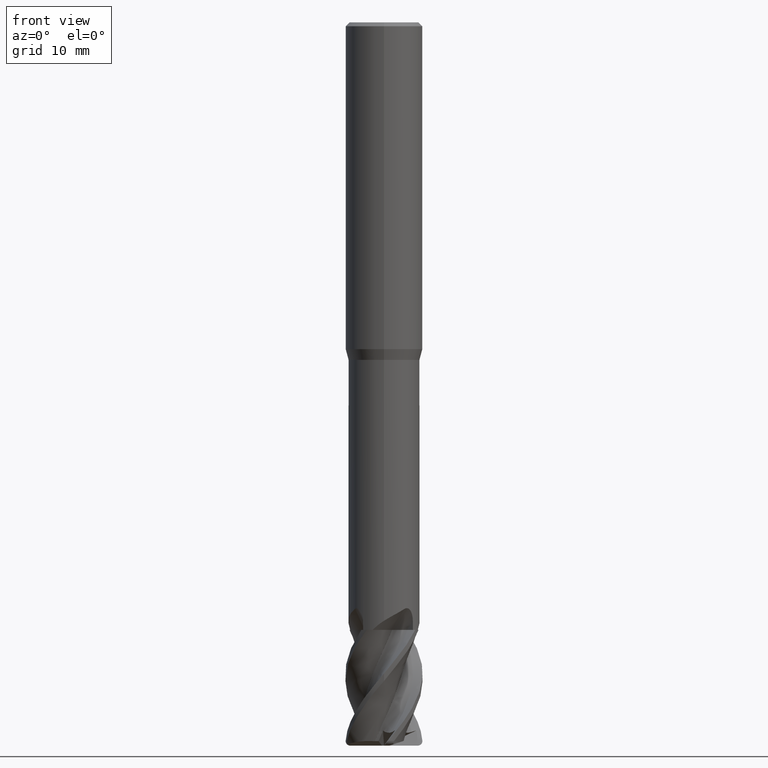
[diagram: clean part render]
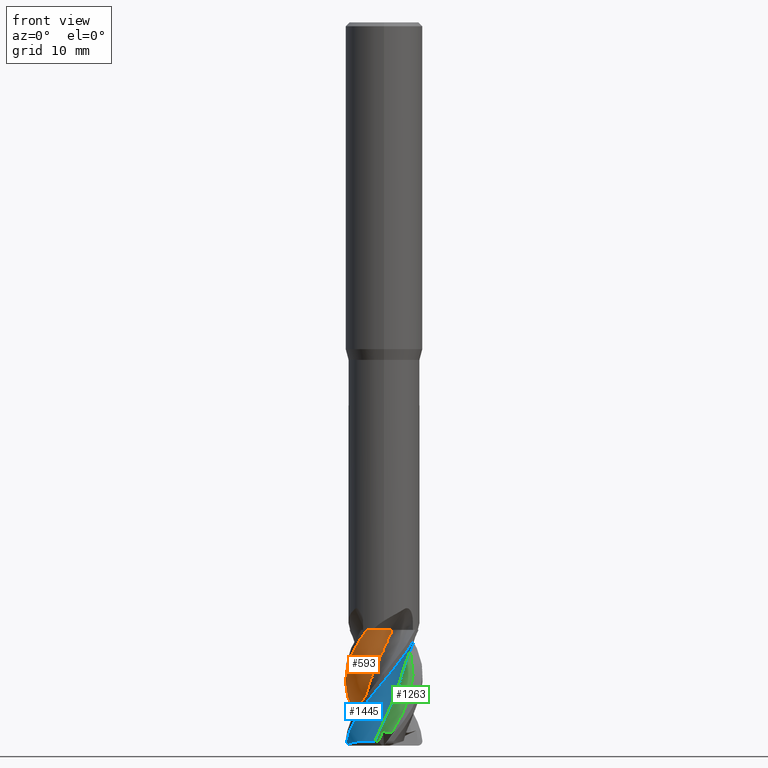
[diagram: same view with three faces highlighted in distinct colors, each labeled with its STEP entity id]
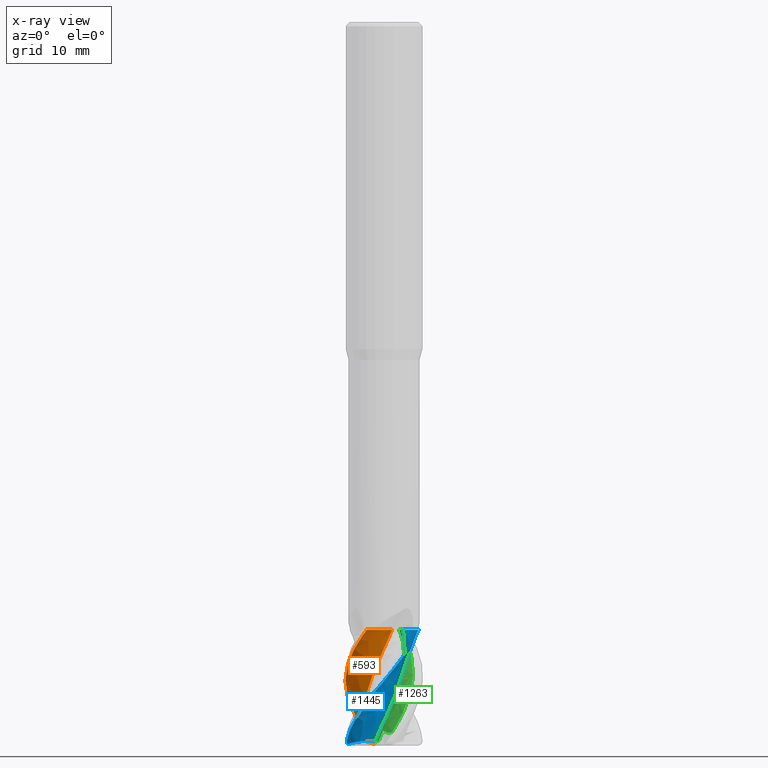
[diagram: x-ray of the same camera — body ghosted, the three highlighted faces saturated]
A machine part, front view with three faces highlighted in distinct colors.
The next image is the same camera in x-ray (body ghosted, the three faces saturated) — at least one of them is partly hidden behind the body in this view.
Their STEP definitions:

[orange] entity #593 — the highlighted face is a freeform B-spline surface patch.
#593=ADVANCED_FACE('',(#1584),#1585,.T.);
#617=VERTEX_POINT('',#1612);
#783=VERTEX_POINT('',#1793);
#803=EDGE_CURVE('',#783,#1057,#1813,.T.);
#967=VERTEX_POINT('',#1992);
#1057=VERTEX_POINT('',#2091);
#1093=EDGE_CURVE('',#1259,#1057,#2133,.T.);
#1203=EDGE_CURVE('',#617,#1259,#2247,.T.);
#1259=VERTEX_POINT('',#2310);
#1261=EDGE_CURVE('',#1309,#967,#2312,.T.);
#1309=VERTEX_POINT('',#2367);
#1413=EDGE_CURVE('',#967,#617,#2484,.T.);
#1465=EDGE_CURVE('',#783,#1309,#2540,.T.);
#1584=FACE_OUTER_BOUND('',#3087,.T.);
#1585=B_SPLINE_SURFACE_WITH_KNOTS('',3,3,((#3088,#3089,#3090,#3091,#3092,#3093,#3094,#3095,#3096,#3097,#3098,#3099,#3100,#3101,#3102,#3103,#3104,#3105,#3106,#3107,#3108,#3109,#3110,#3111,#3112,#3113,#3114,#3115,#3116,#3117,#3118,#3119,#3120,#3121,#3122,#3123,#3124,#3125,#3126,#3127),(#3128,#3129,#3130,#3131,#3132,#3133,#3134,#3135,#3136,#3137,#3138,#3139,#3140,#3141,#3142,#3143,#3144,#3145,#3146,#3147,#3148,#3149,#3150,#3151,#3152,#3153,#3154,#3155,#3156,#3157,#3158,#3159,#3160,#3161,#3162,#3163,#3164,#3165,#3166,#3167),(#3168,#3169,#3170,#3171,#3172,#3173,#3174,#3175,#3176,#3177,#3178,#3179,#3180,#3181,#3182,#3183,#3184,#3185,#3186,#3187,#3188,#3189,#3190,#3191,#3192,#3193,#3194,#3195,#3196,#3197,#3198,#3199,#3200,#3201,#3202,#3203,#3204,#3205,#3206,#3207),(#3208,#3209,#3210,#3211,#3212,#3213,#3214,#3215,#3216,#3217,#3218,#3219,#3220,#3221,#3222,#3223,#3224,#3225,#3226,#3227,#3228,#3229,#3230,#3231,#3232,#3233,#3234,#3235,#3236,#3237,#3238,#3239,#3240,#3241,#3242,#3243,#3244,#3245,#3246,#3247),(#3248,#3249,#3250,#3251,#3252,#3253,#3254,#3255,#3256,#3257,#3258,#3259,#3260,#3261,#3262,#3263,#3264,#3265,#3266,#3267,#3268,#3269,#3270,#3271,#3272,#3273,#3274,#3275,#3276,#3277,#3278,#3279,#3280,#3281,#3282,#3283,#3284,#3285,#3286,#3287),(#3288,#3289,#3290,#3291,#3292,#3293,#3294,#3295,#3296,#3297,#3298,#3299,#3300,#3301,#3302,#3303,#3304,#3305,#3306,#3307,#3308,#3309,#3310,#3311,#3312,#3313,#3314,#3315,#3316,#3317,#3318,#3319,#3320,#3321,#3322,#3323,#3324,#3325,#3326,#3327)),.UNSPECIFIED.,.F.,.F.,.F.,(4,1,1,4),(4,1,2,2,1,2,1,1,2,1,1,2,1,1,1,2,1,1,2,1,1,2,1,1,1,2,1,1,4),(-1.11221997675071,-0.695137485469193,-0.278054994187677,0.0),(0.0,0.439032880743634,0.878065761487268,1.75613152297454,2.63419728446181,3.51226304594907,4.39032880743634,5.70742744966724,7.02452609189815,8.34162473412905,9.65872337635995,10.5367891378472,11.4148548993345,12.2929206608218,13.170986422309,14.0490521837963,14.9271179452836,16.2442165875145,17.5613152297454,18.8784138719763,20.1955125142072,21.0735782756944,21.9516440371817,22.829709798669,23.7077755601562,24.5858413216435,25.4639070831308,26.7810057253617,28.0981043675926),.UNSPECIFIED.);
#1612=CARTESIAN_POINT('',(-1.79929514636751,-3.57235734302409,-63.0));
#1793=CARTESIAN_POINT('',(-1.97351294023017,0.952778940918722,-74.5356994333427));
#1813=B_SPLINE_CURVE_WITH_KNOTS('',3,(#4873,#4874,#4875,#4876,#4877,#4878,#4879,#4880,#4881,#4882,#4883,#4884,#4885,#4886,#4887,#4888,#4889,#4890,#4891,#4892,#4893,#4894,#4895,#4896,#4897,#4898,#4899,#4900,#4901,#4902,#4903,#4904,#4905,#4906,#4907,#4908,#4909,#4910,#4911,#4912),.UNSPECIFIED.,.F.,.F.,(4,1,2,2,1,2,1,1,2,1,1,2,1,1,1,2,1,1,2,1,1,2,1,1,1,2,1,1,4),(0.0,0.439032880743634,0.878065761487268,1.75613152297454,2.63419728446181,3.51226304594907,4.39032880743634,5.70742744966724,7.02452609189815,8.34162473412905,9.65872337635995,10.5367891378472,11.4148548993345,12.2929206608218,13.170986422309,14.0490521837963,14.9271179452836,16.2442165875145,17.5613152297454,18.8784138719763,20.1955125142072,21.0735782756944,21.9516440371817,22.829709798669,23.7077755601562,24.5858413216435,25.4639070831308,26.7810057253617,28.0981043675926),.UNSPECIFIED.);
#1992=CARTESIAN_POINT('',(-1.05738620723931,3.85771103230142,-74.5));
#2091=CARTESIAN_POINT('',(0.841296239243843,-2.02177351185507,-63.0));
#2133=B_SPLINE_CURVE_WITH_KNOTS('',3,(#6669,#6670,#6671,#6672,#6673,#6674,#6675,#6676),.UNSPECIFIED.,.F.,.F.,(4,2,2,4),(0.0,1.24316628872534,2.39651484077598,3.5498294685382),.UNSPECIFIED.);
#2247=B_SPLINE_CURVE_WITH_KNOTS('',3,(#7035,#7036,#7037,#7038,#7039,#7040,#7041,#7042),.UNSPECIFIED.,.F.,.F.,(4,2,2,4),(0.0,1.24316628872534,2.39651484077598,3.5498294685382),.UNSPECIFIED.);
#2310=CARTESIAN_POINT('',(0.362782698582647,-2.63743713482172,-63.0));
#2312=B_SPLINE_CURVE_WITH_KNOTS('',3,(#7381,#7382,#7383,#7384,#7385,#7386,#7387,#7388,#7389,#7390,#7391,#7392,#7393,#7394,#7395,#7396,#7397,#7398,#7399,#7400),.UNSPECIFIED.,.F.,.F.,(4,2,2,2,2,2,2,2,2,4),(0.0,0.552379909875611,1.06509052212347,1.39206714546923,1.59261688967656,1.72125507086386,1.86937893999,1.99092780602165,2.05068872441251,2.10153383070884),.UNSPECIFIED.);
#2367=CARTESIAN_POINT('',(-0.996993932438083,3.72293093051326,-74.8529896927436));
#2484=B_SPLINE_CURVE_WITH_KNOTS('',3,(#9047,#9048,#9049,#9050,#9051,#9052,#9053,#9054,#9055,#9056,#9057,#9058,#9059,#9060,#9061,#9062,#9063,#9064,#9065,#9066,#9067,#9068,#9069,#9070),.UNSPECIFIED.,.F.,.F.,(4,2,2,2,2,2,2,2,2,2,2,4),(0.0,1.93728681932214,2.38966177548725,3.21723639930379,3.84118026529357,4.15143110440671,4.42447861874305,4.59394454964877,4.72281081783603,4.83222102104949,4.91998672964716,5.0074457602304),.UNSPECIFIED.);
#2540=B_SPLINE_CURVE_WITH_KNOTS('',3,(#9734,#9735,#9736,#9737,#9738,#9739,#9740,#9741),.UNSPECIFIED.,.F.,.F.,(4,2,2,4),(0.0,1.08865642506025,2.10408348581327,3.23014612927801),.UNSPECIFIED.);
#3087=EDGE_LOOP('',(#10329,#10330,#10331,#10332,#10333,#10334));
#3088=CARTESIAN_POINT('',(4.15651252143689,0.170304604727883,-83.0));
#3089=CARTESIAN_POINT('',(4.15676892670255,0.154210242727548,-82.8541700844363));
#3090=CARTESIAN_POINT('',(4.15562483607312,0.209523727899493,-82.5625220401028));
#3091=CARTESIAN_POINT('',(4.13836939985323,0.442853523972597,-82.2708781220468));
#3092=CARTESIAN_POINT('',(4.0678284817884,0.921306972990124,-81.8333563516772));
#3093=CARTESIAN_POINT('',(3.99169227389445,1.19232112564926,-81.5416638018503));
#3094=CARTESIAN_POINT('',(3.82291319071121,1.65577071237822,-80.9583350399687));
#3095=CARTESIAN_POINT('',(3.61329091740189,2.10427211047267,-80.3750113981913));
#3096=CARTESIAN_POINT('',(3.31534053892048,2.5246076582793,-79.7916900625163));
#3097=CARTESIAN_POINT('',(2.9673084033052,2.925959826272,-79.2083559884261));
#3098=CARTESIAN_POINT('',(2.49992472884865,3.36860920888073,-78.479173717222));
#3099=CARTESIAN_POINT('',(1.65204719038241,3.87036589757219,-77.312501023173));
#3100=CARTESIAN_POINT('',(0.913225561306203,4.07707142689905,-76.4375280236327));
#3101=CARTESIAN_POINT('',(0.114967529240872,4.1765809275134,-75.5625254817898));
#3102=CARTESIAN_POINT('',(-0.651943091671326,4.15752407826287,-74.6874963190081));
#3103=CARTESIAN_POINT('',(-1.59972482719409,3.87809779097972,-73.5208374924055));
#3104=CARTESIAN_POINT('',(-2.16478665765027,3.56091954372779,-72.7916869961086));
#3105=CARTESIAN_POINT('',(-2.60351845151079,3.25401031519312,-72.2083537417935));
#3106=CARTESIAN_POINT('',(-2.99708798486999,2.91635436596338,-71.6250075661316));
#3107=CARTESIAN_POINT('',(-3.46680282946825,2.33708651069799,-70.7499958159636));
#3108=CARTESIAN_POINT('',(-3.82751733132171,1.68433362491881,-69.8750069158249));
#3109=CARTESIAN_POINT('',(-3.99294546033981,1.19282746707869,-69.2916859845093));
#3110=CARTESIAN_POINT('',(-4.11299375634761,0.670972280874595,-68.7083521120204));
#3111=CARTESIAN_POINT('',(-4.19511630124148,0.0280670918421341,-67.9791682715022));
#3112=CARTESIAN_POINT('',(-4.09837007261366,-0.955220905290088,-66.8124905911891));
#3113=CARTESIAN_POINT('',(-3.82868019011448,-1.67245182726691,-65.9375167094195));
#3114=CARTESIAN_POINT('',(-3.43808057423096,-2.37405117325486,-65.0625165542873));
#3115=CARTESIAN_POINT('',(-2.97019996468435,-2.98127995998127,-64.1874898122224));
#3116=CARTESIAN_POINT('',(-2.18449731870788,-3.58149869460806,-63.0208315615416));
#3117=CARTESIAN_POINT('',(-1.5944227637812,-3.85023254156484,-62.2916793134769));
#3118=CARTESIAN_POINT('',(-1.08749307556035,-4.02297490391,-61.7083439526461));
#3119=CARTESIAN_POINT('',(-0.582760189447271,-4.14099537609584,-61.1249963351636));
#3120=CARTESIAN_POINT('',(0.161543976817411,-4.17784942245168,-60.2499852845867));
#3121=CARTESIAN_POINT('',(0.901319668873798,-4.08346414081249,-59.3750002829367));
#3122=CARTESIAN_POINT('',(1.3964840386558,-3.92640343042626,-58.7916839793687));
#3123=CARTESIAN_POINT('',(1.88985839272763,-3.71428220152244,-58.2083554875879));
#3124=CARTESIAN_POINT('',(2.45856583546626,-3.39955143193267,-57.4791747580688));
#3125=CARTESIAN_POINT('',(3.19246370180782,-2.74097245550957,-56.3124914932851));
#3126=CARTESIAN_POINT('',(3.60643704505467,-2.10819027021498,-55.4375129402571));
#3127=CARTESIAN_POINT('',(3.77225099562874,-1.75067342368867,-55.0000138769393));
#3128=CARTESIAN_POINT('',(3.94536664948759,0.559112466708611,-83.0));
#3129=CARTESIAN_POINT('',(3.94595064628673,0.543196007571147,-82.8541710130093));
#3130=CARTESIAN_POINT('',(3.93793846804385,0.594922015624464,-82.5625903842748));
#3131=CARTESIAN_POINT('',(3.89913701039558,0.815419520035849,-82.2710450944047));
#3132=CARTESIAN_POINT('',(3.78717812074856,1.26499600109144,-81.833452783646));
#3133=CARTESIAN_POINT('',(3.68900176999011,1.51608837223096,-81.5416593429516));
#3134=CARTESIAN_POINT('',(3.48398135626333,1.94137798612009,-80.9583445570053));
#3135=CARTESIAN_POINT('',(3.24149183588851,2.34852622060606,-80.3750580853988));
#3136=CARTESIAN_POINT('',(2.91767275475765,2.72058525889595,-79.7917858161176));
#3137=CARTESIAN_POINT('',(2.54800963588012,3.06995597148856,-79.2084521937968));
#3138=CARTESIAN_POINT('',(2.06063393966166,3.4471578419526,-78.479214398369));
#3139=CARTESIAN_POINT('',(1.20513202300133,3.84397495070122,-77.3125216003117));
#3140=CARTESIAN_POINT('',(0.481703295676922,3.97050137383369,-76.4376513643988));
#3141=CARTESIAN_POINT('',(-0.28829933415758,3.98964870776282,-75.5626409509275));
#3142=CARTESIAN_POINT('',(-1.01705027289851,3.8984193598936,-74.687504275473));
#3143=CARTESIAN_POINT('',(-1.89301795476161,3.54170793146605,-73.5208783683327));
#3144=CARTESIAN_POINT('',(-2.40114151078816,3.18582659052607,-72.7917908299561));
#3145=CARTESIAN_POINT('',(-2.79006044196323,2.85181648293337,-72.208459541741));
#3146=CARTESIAN_POINT('',(-3.13288441331078,2.49271058148612,-71.6250666987934));
#3147=CARTESIAN_POINT('',(-3.52496837681688,1.89612440964803,-70.7500130899503));
#3148=CARTESIAN_POINT('',(-3.80621530502726,1.23996770381086,-69.8750682131881));
#3149=CARTESIAN_POINT('',(-3.91706798988143,0.756019614194456,-69.2917954582065));
#3150=CARTESIAN_POINT('',(-3.98197529038824,0.247425233232465,-68.7084611664757));
#3151=CARTESIAN_POINT('',(-3.99906113853633,-0.372860073107469,-67.9792148020716));
#3152=CARTESIAN_POINT('',(-3.81293032563823,-1.30012410366406,-66.8124990241089));
#3153=CARTESIAN_POINT('',(-3.48772746169429,-1.95760799199352,-65.9376255638311));
#3154=CARTESIAN_POINT('',(-3.04905807906089,-2.58904764125313,-65.0626268832739));
#3155=CARTESIAN_POINT('',(-2.54548838419134,-3.12291195526262,-64.187501356164));
#3156=CARTESIAN_POINT('',(-1.73981619980283,-3.61947840358145,-63.0208775989161));
#3157=CARTESIAN_POINT('',(-1.1521488827454,-3.81936943712225,-62.2917821333736));
#3158=CARTESIAN_POINT('',(-0.652779853159443,-3.93589687319613,-61.7084415392471));
#3159=CARTESIAN_POINT('',(-0.160714532729031,-4.00032077093464,-61.1250430289101));
#3160=CARTESIAN_POINT('',(0.55173254612133,-3.96435083198269,-60.249994352584));
#3161=CARTESIAN_POINT('',(1.2473256823751,-3.80382637881013,-59.3750680424608));
#3162=CARTESIAN_POINT('',(1.70410002122283,-3.60713072729915,-58.7918153196501));
#3163=CARTESIAN_POINT('',(2.15408196965846,-3.35826535825855,-58.2085031638474));
#3164=CARTESIAN_POINT('',(2.66595534012522,-3.0043538713905,-57.4792653854182));
#3165=CARTESIAN_POINT('',(3.30198420834906,-2.30694550525982,-56.3125028313736));
#3166=CARTESIAN_POINT('',(3.63592647078397,-1.6647578553258,-55.4375789255772));
#3167=CARTESIAN_POINT('',(3.75994509429423,-1.30840348931571,-55.000066048961));
#3168=CARTESIAN_POINT('',(3.35869664387462,1.24718889255746,-83.0));
#3169=CARTESIAN_POINT('',(3.35986038896509,1.23176673667378,-82.8541726616025));
#3170=CARTESIAN_POINT('',(3.3396334869126,1.27341405814628,-82.5627117239106));
#3171=CARTESIAN_POINT('',(3.26318055409895,1.45913847485402,-82.2713415406297));
#3172=CARTESIAN_POINT('',(3.08062505666405,1.83345398424911,-81.8336239908523));
#3173=CARTESIAN_POINT('',(2.9468085987261,2.03538906317148,-81.5416514291636));
#3174=CARTESIAN_POINT('',(2.68546941962495,2.36904678971328,-80.9583614511165));
#3175=CARTESIAN_POINT('',(2.39475837256661,2.67960594988501,-80.3751409758429));
#3176=CARTESIAN_POINT('',(2.03964013213078,2.94419381409185,-79.7919558196445));
#3177=CARTESIAN_POINT('',(1.6487184648862,3.18047833323297,-79.2086229981977));
#3178=CARTESIAN_POINT('',(1.14905831082551,3.41836255131359,-78.4792866202565));
#3179=CARTESIAN_POINT('',(0.322708400297972,3.60213158105024,-77.3125581362009));
#3180=CARTESIAN_POINT('',(-0.336021599740302,3.57485536324545,-76.4378703395951));
#3181=CARTESIAN_POINT('',(-1.01552998515959,3.44527576482719,-75.5628459637698));
#3182=CARTESIAN_POINT('',(-1.63744826180198,3.2258845816868,-74.6875184102004));
#3183=CARTESIAN_POINT('',(-2.33712974638419,2.74502691651022,-73.5209509328191));
#3184=CARTESIAN_POINT('',(-2.71503345097304,2.33584908023133,-72.79197517376));
#3185=CARTESIAN_POINT('',(-2.99288806136278,1.96872613206575,-72.208647386101));
#3186=CARTESIAN_POINT('',(-3.22517352565636,1.58820076219627,-71.6251716851896));
#3187=CARTESIAN_POINT('',(-3.45471084294941,0.989830506028528,-70.7500437566908));
#3188=CARTESIAN_POINT('',(-3.575625519679,0.360488225608428,-69.8751770307359));
#3189=CARTESIAN_POINT('',(-3.58055440098389,-0.085258660959713,-69.2919898351638));
#3190=CARTESIAN_POINT('',(-3.54081972357852,-0.544010179587466,-68.7086547689181));
#3191=CARTESIAN_POINT('',(-3.43743709335526,-1.09155295577728,-67.9792974077458));
#3192=CARTESIAN_POINT('',(-3.09628740941769,-1.86898352858122,-66.8125139610039));
#3193=CARTESIAN_POINT('',(-2.68536564579016,-2.38351984571737,-65.9378188855511));
#3194=CARTESIAN_POINT('',(-2.18026509425247,-2.85434120836644,-65.0628227043101));
#3195=CARTESIAN_POINT('',(-1.63637469981831,-3.2264172991807,-64.1875219176743));
#3196=CARTESIAN_POINT('',(-0.834626259837972,-3.5072867151386,-63.0209593471654));
#3197=CARTESIAN_POINT('',(-0.280897341941009,-3.57054773830845,-62.291964636854));
#3198=CARTESIAN_POINT('',(0.179571687812066,-3.57787438580141,-61.708614841585));
#3199=CARTESIAN_POINT('',(0.623633695223791,-3.54049334815173,-61.1251258876922));
#3200=CARTESIAN_POINT('',(1.24157427860698,-3.3723925010964,-60.2500104238524));
#3201=CARTESIAN_POINT('',(1.82084477970175,-3.098317715995,-59.3751883550645));
#3202=CARTESIAN_POINT('',(2.18409151066266,-2.83861522340857,-58.7920485214406));
#3203=CARTESIAN_POINT('',(2.53176680439332,-2.53463937009648,-58.2087653337947));
#3204=CARTESIAN_POINT('',(2.91342661913508,-2.12643235706134,-57.4794263171853));
#3205=CARTESIAN_POINT('',(3.33734287078266,-1.39279149508771,-56.3125229719776));
#3206=CARTESIAN_POINT('',(3.50728710489406,-0.765656623489045,-55.4376960903196));
#3207=CARTESIAN_POINT('',(3.54822944908745,-0.429308875359153,-55.0001586762479));
#3208=CARTESIAN_POINT('',(2.27180685316627,1.76895577092612,-83.0));
#3209=CARTESIAN_POINT('',(2.27341021514057,1.75444938299658,-82.8541739277214));
#3210=CARTESIAN_POINT('',(2.24373945966857,1.77721166643778,-82.5628049122518));
#3211=CARTESIAN_POINT('',(2.14017833064829,1.90020629281433,-82.2715692101832));
#3212=CARTESIAN_POINT('',(1.91223105607222,2.1446388124136,-81.8337554772485));
#3213=CARTESIAN_POINT('',(1.76152989566074,2.26739699917858,-81.5416453496056));
#3214=CARTESIAN_POINT('',(1.48104810027898,2.4589304082388,-80.9583744275262));
#3215=CARTESIAN_POINT('',(1.18374301238934,2.62569750425189,-80.3752046346941));
#3216=CARTESIAN_POINT('',(0.848537931365264,2.74237143391804,-79.7920863812414));
#3217=CARTESIAN_POINT('',(0.492802295779826,2.82932234763224,-79.2087541757344));
#3218=CARTESIAN_POINT('',(0.0534398910899905,2.89074643905799,-78.479342086906));
#3219=CARTESIAN_POINT('',(-0.622266955479762,2.83056846785681,-77.3125861948947));
#3220=CARTESIAN_POINT('',(-1.11903355011284,2.65076874377564,-76.4380385146576));
#3221=CARTESIAN_POINT('',(-1.60787710520906,2.38878981773251,-75.5630034098365));
#3222=CARTESIAN_POINT('',(-2.03032575256397,2.07089491231098,-74.6875292577415));
#3223=CARTESIAN_POINT('',(-2.44804597642345,1.53395343771168,-73.521006669318));
#3224=CARTESIAN_POINT('',(-2.63842102322545,1.13016573620448,-72.7921167491209));
#3225=CARTESIAN_POINT('',(-2.7630018473811,0.782686483989743,-72.2087916497766));
#3226=CARTESIAN_POINT('',(-2.84897232076571,0.435774529045564,-71.6252523121419));
#3227=CARTESIAN_POINT('',(-2.87940749543165,-0.0769480358895595,-70.7500673091956));
#3228=CARTESIAN_POINT('',(-2.81937079861786,-0.586978539036442,-69.8752606066695));
#3229=CARTESIAN_POINT('',(-2.7158222937499,-0.928929980478293,-69.2921391113216));
#3230=CARTESIAN_POINT('',(-2.57546264295721,-1.27038785476927,-68.7088034593963));
#3231=CARTESIAN_POINT('',(-2.36453559901595,-1.66417223693525,-67.9793608555696));
#3232=CARTESIAN_POINT('',(-1.91537737639415,-2.17520624296214,-66.8125254544979));
#3233=CARTESIAN_POINT('',(-1.47720073438293,-2.4691817714004,-65.9379673196882));
#3234=CARTESIAN_POINT('',(-0.977903622586959,-2.70832336138097,-65.0629731302514));
#3235=CARTESIAN_POINT('',(-0.472276518864418,-2.8614008308788,-64.187537673989));
#3236=CARTESIAN_POINT('',(0.2081499600897,-2.88146367397261,-63.0210221210964));
#3237=CARTESIAN_POINT('',(0.646689358206295,-2.79651446997004,-62.292104827962));
#3238=CARTESIAN_POINT('',(1.0007405960166,-2.69174678312886,-61.7087479079436));
#3239=CARTESIAN_POINT('',(1.33128411710937,-2.55620512194798,-61.1251895445376));
#3240=CARTESIAN_POINT('',(1.76263577011626,-2.27810268135198,-60.2500227824086));
#3241=CARTESIAN_POINT('',(2.13876319952673,-1.92846234275129,-59.375280750363));
#3242=CARTESIAN_POINT('',(2.35396130838911,-1.64248894180434,-58.7922276139991));
#3243=CARTESIAN_POINT('',(2.5471529851094,-1.32661082146069,-58.2089666847625));
#3244=CARTESIAN_POINT('',(2.74075201420978,-0.922572784352755,-57.4795499019426));
#3245=CARTESIAN_POINT('',(2.8865349461251,-0.259368337705097,-56.3125384280343));
#3246=CARTESIAN_POINT('',(2.86470462077031,0.260811172164625,-55.4377860640782));
#3247=CARTESIAN_POINT('',(2.81518952404198,0.527886274931397,-55.0002298136335));
#3248=CARTESIAN_POINT('',(1.53087183265994,1.84315399683015,-83.0));
#3249=CARTESIAN_POINT('',(1.53253771258903,1.82927189002101,-82.8541741224235));
#3250=CARTESIAN_POINT('',(1.50135824993786,1.83908064073354,-82.5628192389574));
#3251=CARTESIAN_POINT('',(1.39525996611728,1.91994487325053,-82.2716042118159));
#3252=CARTESIAN_POINT('',(1.16829354776217,2.07940548016577,-81.8337756920056));
#3253=CARTESIAN_POINT('',(1.02445343036872,2.15263494361,-81.5416444150829));
#3254=CARTESIAN_POINT('',(0.762770882370451,2.25761338802048,-80.9583764223652));
#3255=CARTESIAN_POINT('',(0.491902518128065,2.33949836754962,-80.3752144214796));
#3256=CARTESIAN_POINT('',(0.199393377292587,2.37447606674746,-79.7921064539448));
#3257=CARTESIAN_POINT('',(-0.1044791509085,2.38212106509442,-79.2087743425695));
#3258=CARTESIAN_POINT('',(-0.47168746467348,2.35377353119584,-78.4793506163942));
#3259=CARTESIAN_POINT('',(-1.00857561339932,2.18365310765914,-77.3125905092166));
#3260=CARTESIAN_POINT('',(-1.37919325621572,1.94937954903894,-76.4380643684005));
#3261=CARTESIAN_POINT('',(-1.72945786500594,1.65065320876065,-75.5630276167917));
#3262=CARTESIAN_POINT('',(-2.01534937775153,1.31754593948691,-74.6875309343456));
#3263=CARTESIAN_POINT('',(-2.25754157791533,0.80738660005957,-73.5210152338908));
#3264=CARTESIAN_POINT('',(-2.34016090540786,0.446200092433929,-72.7921385188991));
#3265=CARTESIAN_POINT('',(-2.37987653475022,0.142388476293522,-72.2088138246343));
#3266=CARTESIAN_POINT('',(-2.38796286387251,-0.154208888913749,-71.6252647040638));
#3267=CARTESIAN_POINT('',(-2.32081482187867,-0.575291951178273,-70.7500709321794));
#3268=CARTESIAN_POINT('',(-2.18081999953954,-0.977956000237738,-69.8752734619459));
#3269=CARTESIAN_POINT('',(-2.03613015692415,-1.23680515148751,-69.2921620594033));
#3270=CARTESIAN_POINT('',(-1.86202985462446,-1.48897566076501,-68.7088263204366));
#3271=CARTESIAN_POINT('',(-1.62101950767621,-1.77084266131403,-67.9793706110422));
#3272=CARTESIAN_POINT('',(-1.16521675987824,-2.10445721116102,-66.8125272158402));
#3273=CARTESIAN_POINT('',(-0.757638344354624,-2.26462542991524,-65.9379901453275));
#3274=CARTESIAN_POINT('',(-0.310475433957599,-2.37046154502151,-65.0629962510909));
#3275=CARTESIAN_POINT('',(0.126838504980619,-2.40442916009597,-64.1875400974676));
#3276=CARTESIAN_POINT('',(0.681923229277207,-2.29858832889914,-63.0210317699178));
#3277=CARTESIAN_POINT('',(1.02238122137399,-2.15182478769516,-62.2921263778072));
#3278=CARTESIAN_POINT('',(1.29104617020224,-2.00436749683283,-61.7087683684545));
#3279=CARTESIAN_POINT('',(1.53501310036189,-1.83572154230223,-61.1251993333082));
#3280=CARTESIAN_POINT('',(1.83486683532725,-1.5330192334559,-60.2500246830945));
#3281=CARTESIAN_POINT('',(2.07713219146672,-1.18225898191023,-59.3752949419992));
#3282=CARTESIAN_POINT('',(2.20083496668871,-0.912192670220487,-58.7922551663164));
#3283=CARTESIAN_POINT('',(2.30181909056654,-0.621919371122298,-58.2089976214948));
#3284=CARTESIAN_POINT('',(2.38709637950359,-0.259885474843854,-57.4795689197481));
#3285=CARTESIAN_POINT('',(2.38620420546495,0.303877407025182,-56.312540802864));
#3286=CARTESIAN_POINT('',(2.27553038052729,0.721587250126157,-55.4377998944195));
#3287=CARTESIAN_POINT('',(2.18807096381225,0.929398905659236,-55.0002407502328));
#3288=CARTESIAN_POINT('',(1.23613335073989,1.83170567526701,-83.0));
#3289=CARTESIAN_POINT('',(1.2377895840979,1.81807190279314,-82.8541741025457));
#3290=CARTESIAN_POINT('',(1.20672728851038,1.82271625522481,-82.5628177782087));
#3291=CARTESIAN_POINT('',(1.10193977056054,1.88691339274446,-82.2716006431028));
#3292=CARTESIAN_POINT('',(0.880009326314224,2.01309225989056,-81.8337736308468));
#3293=CARTESIAN_POINT('',(0.741571961981888,2.06726661479441,-81.5416445104132));
#3294=CARTESIAN_POINT('',(0.492002390065836,2.13931761054456,-80.9583762189255));
#3295=CARTESIAN_POINT('',(0.23615170090708,2.18934948186274,-80.3752134236371));
#3296=CARTESIAN_POINT('',(-0.0351354785264084,2.19461392158264,-79.7921044073619));
#3297=CARTESIAN_POINT('',(-0.314320511967685,2.17398519802234,-79.2087722863488));
#3298=CARTESIAN_POINT('',(-0.648308072652243,2.11436880880064,-78.4793497458805));
#3299=CARTESIAN_POINT('',(-1.12471810574497,1.90871536392046,-77.312590068964));
#3300=CARTESIAN_POINT('',(-1.4428643393216,1.65997622250884,-76.438061733193));
#3301=CARTESIAN_POINT('',(-1.73675141912832,1.35441896186937,-75.5630251478354));
#3302=CARTESIAN_POINT('',(-1.96823735719612,1.02281854264093,-74.6875307598658));
#3303=CARTESIAN_POINT('',(-2.14303395844564,0.532774139746374,-73.5210143615493));
#3304=CARTESIAN_POINT('',(-2.18571141378913,0.194198857834362,-72.7921362978877));
#3305=CARTESIAN_POINT('',(-2.19452375398434,-0.0878361312475617,-72.2088115650719));
#3306=CARTESIAN_POINT('',(-2.17480937276935,-0.360431320792964,-71.6252634432));
#3307=CARTESIAN_POINT('',(-2.07439449275861,-0.740221703624163,-70.7500705620949));
#3308=CARTESIAN_POINT('',(-1.90890820649805,-1.09638797289779,-69.8752721481262));
#3309=CARTESIAN_POINT('',(-1.75262698830087,-1.32038318914499,-69.2921597192466));
#3310=CARTESIAN_POINT('',(-1.57017724675793,-1.53567838762889,-68.7088239899177));
#3311=CARTESIAN_POINT('',(-1.32349098648404,-1.77199226154813,-67.9793696160966));
#3312=CARTESIAN_POINT('',(-0.8747930619271,-2.03563948115146,-66.8125270380495));
#3313=CARTESIAN_POINT('',(-0.486542977952101,-2.14498848700632,-65.9379878174441));
#3314=CARTESIAN_POINT('',(-0.0671297333498575,-2.20138109026099,-65.0629938942943));
#3315=CARTESIAN_POINT('',(0.336864386049752,-2.19235989369973,-64.1875398525262));
#3316=CARTESIAN_POINT('',(0.835884465748461,-2.04398657831165,-63.0210307890431));
#3317=CARTESIAN_POINT('',(1.13448045731937,-1.87834134008742,-62.2921241783026));
#3318=CARTESIAN_POINT('',(1.36731068210093,-1.71881029686207,-61.7087662846029));
#3319=CARTESIAN_POINT('',(1.57550059972729,-1.54191616645983,-61.1251983335048));
#3320=CARTESIAN_POINT('',(1.82241969877268,-1.23676095566173,-60.2500244897498));
#3321=CARTESIAN_POINT('',(2.0121081769327,-0.892888657253481,-59.3752934999789));
#3322=CARTESIAN_POINT('',(2.10078703375201,-0.634071119678672,-58.7922523483994));
#3323=CARTESIAN_POINT('',(2.16699866420342,-0.358890110032327,-58.2089944758945));
#3324=CARTESIAN_POINT('',(2.21207933699895,-0.0192641924077827,-57.4795669727126));
#3325=CARTESIAN_POINT('',(2.15908810072524,0.49745799484223,-56.3125405604053));
#3326=CARTESIAN_POINT('',(2.0191689397977,0.870104756804534,-55.4377984901958));
#3327=CARTESIAN_POINT('',(1.92006749227673,1.05258971714799,-55.0002396351413));
#4873=CARTESIAN_POINT('',(1.23613335073989,1.83170567526701,-83.0));
#4874=CARTESIAN_POINT('',(1.2377895840979,1.81807190279314,-82.8541741025457));
#4875=CARTESIAN_POINT('',(1.20672728851038,1.82271625522481,-82.5628177782087));
#4876=CARTESIAN_POINT('',(1.10193977056054,1.88691339274446,-82.2716006431028));
#4877=CARTESIAN_POINT('',(0.880009326314224,2.01309225989056,-81.8337736308468));
#4878=CARTESIAN_POINT('',(0.741571961981888,2.06726661479441,-81.5416445104132));
#4879=CARTESIAN_POINT('',(0.492002390065836,2.13931761054456,-80.9583762189255));
#4880=CARTESIAN_POINT('',(0.23615170090708,2.18934948186274,-80.3752134236371));
#4881=CARTESIAN_POINT('',(-0.0351354785264084,2.19461392158264,-79.7921044073619));
#4882=CARTESIAN_POINT('',(-0.314320511967685,2.17398519802234,-79.2087722863488));
#4883=CARTESIAN_POINT('',(-0.648308072652243,2.11436880880064,-78.4793497458805));
#4884=CARTESIAN_POINT('',(-1.12471810574497,1.90871536392046,-77.312590068964));
#4885=CARTESIAN_POINT('',(-1.4428643393216,1.65997622250884,-76.438061733193));
#4886=CARTESIAN_POINT('',(-1.73675141912832,1.35441896186937,-75.5630251478354));
#4887=CARTESIAN_POINT('',(-1.96823735719612,1.02281854264093,-74.6875307598658));
#4888=CARTESIAN_POINT('',(-2.14303395844564,0.532774139746374,-73.5210143615493));
#4889=CARTESIAN_POINT('',(-2.18571141378913,0.194198857834362,-72.7921362978877));
#4890=CARTESIAN_POINT('',(-2.19452375398434,-0.0878361312475617,-72.2088115650719));
#4891=CARTESIAN_POINT('',(-2.17480937276935,-0.360431320792964,-71.6252634432));
#4892=CARTESIAN_POINT('',(-2.07439449275861,-0.740221703624163,-70.7500705620949));
#4893=CARTESIAN_POINT('',(-1.90890820649805,-1.09638797289779,-69.8752721481262));
#4894=CARTESIAN_POINT('',(-1.75262698830087,-1.32038318914499,-69.2921597192466));
#4895=CARTESIAN_POINT('',(-1.57017724675793,-1.53567838762889,-68.7088239899177));
#4896=CARTESIAN_POINT('',(-1.32349098648404,-1.77199226154813,-67.9793696160966));
#4897=CARTESIAN_POINT('',(-0.8747930619271,-2.03563948115146,-66.8125270380495));
#4898=CARTESIAN_POINT('',(-0.486542977952101,-2.14498848700632,-65.9379878174441));
#4899=CARTESIAN_POINT('',(-0.0671297333498575,-2.20138109026099,-65.0629938942943));
#4900=CARTESIAN_POINT('',(0.336864386049752,-2.19235989369973,-64.1875398525262));
#4901=CARTESIAN_POINT('',(0.835884465748461,-2.04398657831165,-63.0210307890431));
#4902=CARTESIAN_POINT('',(1.13448045731937,-1.87834134008742,-62.2921241783026));
#4903=CARTESIAN_POINT('',(1.36731068210093,-1.71881029686207,-61.7087662846029));
#4904=CARTESIAN_POINT('',(1.57550059972729,-1.54191616645983,-61.1251983335048));
#4905=CARTESIAN_POINT('',(1.82241969877268,-1.23676095566173,-60.2500244897498));
#4906=CARTESIAN_POINT('',(2.0121081769327,-0.892888657253481,-59.3752934999789));
#4907=CARTESIAN_POINT('',(2.10078703375201,-0.634071119678672,-58.7922523483994));
#4908=CARTESIAN_POINT('',(2.16699866420342,-0.358890110032327,-58.2089944758945));
#4909=CARTESIAN_POINT('',(2.21207933699895,-0.0192641924077827,-57.4795669727126));
#4910=CARTESIAN_POINT('',(2.15908810072524,0.49745799484223,-56.3125405604053));
#4911=CARTESIAN_POINT('',(2.0191689397977,0.870104756804534,-55.4377984901958));
#4912=CARTESIAN_POINT('',(1.92006749227673,1.05258971714799,-55.0002396351413));
#6669=CARTESIAN_POINT('',(-2.14402707640686,-3.56366989385119,-63.0));
#6670=CARTESIAN_POINT('',(-1.73094390282993,-3.59653839750445,-63.0));
#6671=CARTESIAN_POINT('',(-1.31539089322412,-3.54840981697179,-63.0));
#6672=CARTESIAN_POINT('',(-0.554635919955544,-3.30470197086095,-63.0));
#6673=CARTESIAN_POINT('',(-0.212781753843216,-3.12203290532083,-63.0));
#6674=CARTESIAN_POINT('',(0.389183256803379,-2.64367594059889,-63.0));
#6675=CARTESIAN_POINT('',(0.644342803606159,-2.35192789122173,-63.0));
#6676=CARTESIAN_POINT('',(0.841296239243843,-2.02177351185507,-63.0));
#7035=CARTESIAN_POINT('',(-2.14402707640686,-3.56366989385119,-63.0));
#7036=CARTESIAN_POINT('',(-1.73094390282993,-3.59653839750445,-63.0));
#7037=CARTESIAN_POINT('',(-1.31539089322412,-3.54840981697179,-63.0));
#7038=CARTESIAN_POINT('',(-0.554635919955544,-3.30470197086095,-63.0));
#7039=CARTESIAN_POINT('',(-0.212781753843216,-3.12203290532083,-63.0));
#7040=CARTESIAN_POINT('',(0.389183256803379,-2.64367594059889,-63.0));
#7041=CARTESIAN_POINT('',(0.644342803606159,-2.35192789122173,-63.0));
#7042=CARTESIAN_POINT('',(0.841296239243843,-2.02177351185507,-63.0));
#7381=CARTESIAN_POINT('',(-1.66044897743041,2.72052942918702,-74.8900880121276));
#7382=CARTESIAN_POINT('',(-1.57054552683621,2.86814644066085,-74.9535640375994));
#7383=CARTESIAN_POINT('',(-1.46892084315926,3.02749346665207,-74.9905708615427));
#7384=CARTESIAN_POINT('',(-1.26869171430373,3.32115088396363,-75.0057265788442));
#7385=CARTESIAN_POINT('',(-1.17732461022227,3.44739232161791,-74.9873274808993));
#7386=CARTESIAN_POINT('',(-1.06032429880424,3.61748752784902,-74.9249890739354));
#7387=CARTESIAN_POINT('',(-1.02286381022625,3.6748607605151,-74.8926768275501));
#7388=CARTESIAN_POINT('',(-0.981947249004613,3.7508873541431,-74.8299118506334));
#7389=CARTESIAN_POINT('',(-0.969675219814878,3.77822791679142,-74.801650279781));
#7390=CARTESIAN_POINT('',(-0.960736640291398,3.81600710366804,-74.7476475404698));
#7391=CARTESIAN_POINT('',(-0.960150654207264,3.8286338358895,-74.7251536440296));
#7392=CARTESIAN_POINT('',(-0.966295672276285,3.85030250031948,-74.6739895773757));
#7393=CARTESIAN_POINT('',(-0.97397374918776,3.85788434215239,-74.6463963505869));
#7394=CARTESIAN_POINT('',(-0.994671707533438,3.8652147245264,-74.5965306261343));
#7395=CARTESIAN_POINT('',(-1.00624394911188,3.86603736809079,-74.5747605334191));
#7396=CARTESIAN_POINT('',(-1.02563427440171,3.86440879575991,-74.5437091107162));
#7397=CARTESIAN_POINT('',(-1.03237069592285,3.86340896337302,-74.5337037706905));
#7398=CARTESIAN_POINT('',(-1.04530439322492,3.86082464069197,-74.5156535666861));
#7399=CARTESIAN_POINT('',(-1.05144269730611,3.85934752849922,-74.5075241950874));
#7400=CARTESIAN_POINT('',(-1.05772203074701,3.85761878070986,-74.4995745022415));
#9047=CARTESIAN_POINT('',(-1.0573862072393,3.85771103230141,-74.5));
#9048=CARTESIAN_POINT('',(-1.45162561303632,3.74964676968689,-74.0000936893465));
#9049=CARTESIAN_POINT('',(-1.8323732126315,3.58027474020428,-73.4911276210963));
#9050=CARTESIAN_POINT('',(-2.26595803281349,3.29771435933135,-72.8831146256127));
#9051=CARTESIAN_POINT('',(-2.34661969243649,3.24085378292051,-72.7685640362724));
#9052=CARTESIAN_POINT('',(-2.57021714572687,3.07032548676593,-72.4463390567312));
#9053=CARTESIAN_POINT('',(-2.89008331461427,2.81634802633735,-71.9921522808693));
#9054=CARTESIAN_POINT('',(-3.44876083431048,2.06580604276136,-70.8575235774767));
#9055=CARTESIAN_POINT('',(-3.63968005744976,1.70775137334116,-70.358653044133));
#9056=CARTESIAN_POINT('',(-3.84061516962318,1.13572831374814,-69.6311853885229));
#9057=CARTESIAN_POINT('',(-3.89379523847116,0.938510827845535,-69.3911246175034));
#9058=CARTESIAN_POINT('',(-3.96527726549243,0.556183527240254,-68.9455356001327));
#9059=CARTESIAN_POINT('',(-4.03241734332541,0.153476436462243,-68.4915560965395));
#9060=CARTESIAN_POINT('',(-3.95086773147954,-0.706887737419776,-67.4432634609043));
#9061=CARTESIAN_POINT('',(-3.87888201893583,-1.03112782067886,-67.0349877151046));
#9062=CARTESIAN_POINT('',(-3.6833435418753,-1.57978239101546,-66.3282696240798));
#9063=CARTESIAN_POINT('',(-3.57546457648535,-1.81184541922538,-66.024204565429));
#9064=CARTESIAN_POINT('',(-3.33135780765743,-2.22484923329583,-65.4713666629051));
#9065=CARTESIAN_POINT('',(-3.18213909980469,-2.44362188787729,-65.1758776825283));
#9066=CARTESIAN_POINT('',(-2.80477204044489,-2.86279314787114,-64.5060816303792));
#9067=CARTESIAN_POINT('',(-2.6212193949715,-3.03136925634962,-64.2037219181271));
#9068=CARTESIAN_POINT('',(-2.23004150469383,-3.32963063497421,-63.6014822766007));
#9069=CARTESIAN_POINT('',(-2.02059242011188,-3.46089908854584,-63.2989133597419));
#9070=CARTESIAN_POINT('',(-1.79929514636758,-3.57235734302408,-63.0));
#9734=CARTESIAN_POINT('',(-1.97351294021357,0.952778940938991,-74.5356994333716));
#9735=CARTESIAN_POINT('',(-2.04757799987166,1.30720961290021,-74.511634236686));
#9736=CARTESIAN_POINT('',(-2.0572321850472,1.67043789055814,-74.5084974018382));
#9737=CARTESIAN_POINT('',(-1.93925552037634,2.35993847755394,-74.5468303438856));
#9738=CARTESIAN_POINT('',(-1.82267529283549,2.67572733100251,-74.584709555919));
#9739=CARTESIAN_POINT('',(-1.46485967209924,3.28154787893602,-74.700970898716));
#9740=CARTESIAN_POINT('',(-1.21738515390495,3.5552084499316,-74.7813802440122));
#9741=CARTESIAN_POINT('',(-0.928998976948296,3.7767541407904,-74.8750825930267));
#10329=ORIENTED_EDGE('',*,*,#1413,.F.);
#10330=ORIENTED_EDGE('',*,*,#1261,.F.);
#10331=ORIENTED_EDGE('',*,*,#1465,.F.);
#10332=ORIENTED_EDGE('',*,*,#803,.T.);
#10333=ORIENTED_EDGE('',*,*,#1093,.F.);
#10334=ORIENTED_EDGE('',*,*,#1203,.F.);

[blue] entity #1445 — the highlighted face is a freeform B-spline surface patch.
#597=VERTEX_POINT('',#1589);
#637=VERTEX_POINT('',#1633);
#643=EDGE_CURVE('',#1101,#1431,#1641,.T.);
#709=EDGE_CURVE('',#1365,#597,#1715,.T.);
#837=EDGE_CURVE('',#637,#597,#1849,.T.);
#851=VERTEX_POINT('',#1863);
#929=EDGE_CURVE('',#1243,#851,#1949,.T.);
#1101=VERTEX_POINT('',#2141);
#1175=EDGE_CURVE('',#851,#1101,#2217,.T.);
#1243=VERTEX_POINT('',#2289);
#1365=VERTEX_POINT('',#2432);
#1375=EDGE_CURVE('',#1431,#1365,#2443,.T.);
#1431=VERTEX_POINT('',#2503);
#1445=ADVANCED_FACE('',(#2518),#2519,.T.);
#1455=EDGE_CURVE('',#637,#1243,#2529,.T.);
#1589=CARTESIAN_POINT('',(2.02177351185507,0.841296239243843,-63.0));
#1633=CARTESIAN_POINT('',(-0.952778940918722,-1.97351294023017,-74.5356994333427));
#1641=B_SPLINE_CURVE_WITH_KNOTS('',3,(#3647,#3648,#3649,#3650,#3651,#3652,#3653,#3654,#3655,#3656,#3657,#3658,#3659,#3660,#3661,#3662,#3663,#3664,#3665,#3666,#3667,#3668,#3669,#3670),.UNSPECIFIED.,.F.,.F.,(4,2,2,2,2,2,2,2,2,2,2,4),(0.0,1.93728681954854,2.38966177577967,3.21723639906256,3.84118026463859,4.1514311035584,4.42447861762137,4.59394454835575,4.72281081641037,4.8322210195101,4.91998672808108,5.00744575864043),.UNSPECIFIED.);
#1715=B_SPLINE_CURVE_WITH_KNOTS('',3,(#4527,#4528,#4529,#4530,#4531,#4532,#4533,#4534),.UNSPECIFIED.,.F.,.F.,(4,2,2,4),(0.0,1.24316628872533,2.39651484077598,3.54982946853822),.UNSPECIFIED.);
#1849=B_SPLINE_CURVE_WITH_KNOTS('',3,(#5059,#5060,#5061,#5062,#5063,#5064,#5065,#5066,#5067,#5068,#5069,#5070,#5071,#5072,#5073,#5074,#5075,#5076,#5077,#5078,#5079,#5080,#5081,#5082,#5083,#5084,#5085,#5086,#5087,#5088,#5089,#5090,#5091,#5092,#5093,#5094,#5095,#5096,#5097,#5098),.UNSPECIFIED.,.F.,.F.,(4,1,2,2,1,2,1,1,2,1,1,2,1,1,1,2,1,1,2,1,1,2,1,1,1,2,1,1,4),(0.0,0.439032880743634,0.878065761487268,1.75613152297454,2.63419728446181,3.51226304594907,4.39032880743634,5.70742744966724,7.02452609189815,8.34162473412905,9.65872337635995,10.5367891378472,11.4148548993345,12.2929206608218,13.170986422309,14.0490521837963,14.9271179452836,16.2442165875145,17.5613152297454,18.8784138719763,20.1955125142072,21.0735782756944,21.9516440371817,22.829709798669,23.7077755601562,24.5858413216435,25.4639070831308,26.7810057253617,28.0981043675926),.UNSPECIFIED.);
#1863=CARTESIAN_POINT('',(-3.85771103230142,-1.05738620723931,-74.5));
#1949=B_SPLINE_CURVE_WITH_KNOTS('',3,(#5685,#5686,#5687,#5688,#5689,#5690,#5691,#5692,#5693,#5694,#5695,#5696,#5697,#5698,#5699,#5700,#5701,#5702,#5703,#5704),.UNSPECIFIED.,.F.,.F.,(4,2,2,2,2,2,2,2,2,4),(0.0,0.552379909872772,1.06509052213006,1.39206714547482,1.59261688967295,1.72125507085385,1.86937893997234,1.99092780599746,2.05068872438521,2.10153383068228),.UNSPECIFIED.);
#2141=CARTESIAN_POINT('',(2.59805361708293E-009,-3.99994607672928,-68.2988238669396));
#2217=B_SPLINE_CURVE_WITH_KNOTS('',3,(#6914,#6915,#6916,#6917,#6918,#6919,#6920,#6921,#6922,#6923,#6924,#6925,#6926,#6927,#6928,#6929,#6930,#6931,#6932,#6933,#6934,#6935,#6936,#6937),.UNSPECIFIED.,.F.,.F.,(4,2,2,2,2,2,2,2,2,2,2,4),(0.0,1.93728681954854,2.38966177577967,3.21723639906256,3.84118026463859,4.1514311035584,4.42447861762137,4.59394454835575,4.72281081641037,4.8322210195101,4.91998672808108,5.00744575864043),.UNSPECIFIED.);
#2289=CARTESIAN_POINT('',(-3.72293093051326,-0.996993932438083,-74.8529896927436));
#2432=CARTESIAN_POINT('',(2.63743713481737,0.362782698586984,-63.0));
#2443=B_SPLINE_CURVE_WITH_KNOTS('',3,(#8440,#8441,#8442,#8443,#8444,#8445,#8446,#8447),.UNSPECIFIED.,.F.,.F.,(4,2,2,4),(0.0,1.24316628872533,2.39651484077598,3.54982946853822),.UNSPECIFIED.);
#2503=CARTESIAN_POINT('',(3.57235734302409,-1.79929514636751,-63.0));
#2518=FACE_OUTER_BOUND('',#9390,.T.);
#2519=B_SPLINE_SURFACE_WITH_KNOTS('',3,3,((#9391,#9392,#9393,#9394,#9395,#9396,#9397,#9398,#9399,#9400,#9401,#9402,#9403,#9404,#9405,#9406,#9407,#9408,#9409,#9410,#9411,#9412,#9413,#9414,#9415,#9416,#9417,#9418,#9419,#9420,#9421,#9422,#9423,#9424,#9425,#9426,#9427,#9428,#9429,#9430),(#9431,#9432,#9433,#9434,#9435,#9436,#9437,#9438,#9439,#9440,#9441,#9442,#9443,#9444,#9445,#9446,#9447,#9448,#9449,#9450,#9451,#9452,#9453,#9454,#9455,#9456,#9457,#9458,#9459,#9460,#9461,#9462,#9463,#9464,#9465,#9466,#9467,#9468,#9469,#9470),(#9471,#9472,#9473,#9474,#9475,#9476,#9477,#9478,#9479,#9480,#9481,#9482,#9483,#9484,#9485,#9486,#9487,#9488,#9489,#9490,#9491,#9492,#9493,#9494,#9495,#9496,#9497,#9498,#9499,#9500,#9501,#9502,#9503,#9504,#9505,#9506,#9507,#9508,#9509,#9510),(#9511,#9512,#9513,#9514,#9515,#9516,#9517,#9518,#9519,#9520,#9521,#9522,#9523,#9524,#9525,#9526,#9527,#9528,#9529,#9530,#9531,#9532,#9533,#9534,#9535,#9536,#9537,#9538,#9539,#9540,#9541,#9542,#9543,#9544,#9545,#9546,#9547,#9548,#9549,#9550),(#9551,#9552,#9553,#9554,#9555,#9556,#9557,#9558,#9559,#9560,#9561,#9562,#9563,#9564,#9565,#9566,#9567,#9568,#9569,#9570,#9571,#9572,#9573,#9574,#9575,#9576,#9577,#9578,#9579,#9580,#9581,#9582,#9583,#9584,#9585,#9586,#9587,#9588,#9589,#9590),(#9591,#9592,#9593,#9594,#9595,#9596,#9597,#9598,#9599,#9600,#9601,#9602,#9603,#9604,#9605,#9606,#9607,#9608,#9609,#9610,#9611,#9612,#9613,#9614,#9615,#9616,#9617,#9618,#9619,#9620,#9621,#9622,#9623,#9624,#9625,#9626,#9627,#9628,#9629,#9630)),.UNSPECIFIED.,.F.,.F.,.F.,(4,1,1,4),(4,1,2,2,1,2,1,1,2,1,1,2,1,1,1,2,1,1,2,1,1,2,1,1,1,2,1,1,4),(-1.11221997675071,-0.695137485469193,-0.278054994187677,0.0),(0.0,0.439032880743634,0.878065761487268,1.75613152297454,2.63419728446181,3.51226304594907,4.39032880743634,5.70742744966724,7.02452609189815,8.34162473412905,9.65872337635995,10.5367891378472,11.4148548993345,12.2929206608218,13.170986422309,14.0490521837963,14.9271179452836,16.2442165875145,17.5613152297454,18.8784138719763,20.1955125142072,21.0735782756944,21.9516440371817,22.829709798669,23.7077755601562,24.5858413216435,25.4639070831308,26.7810057253617,28.0981043675926),.UNSPECIFIED.);
#2529=B_SPLINE_CURVE_WITH_KNOTS('',3,(#9660,#9661,#9662,#9663,#9664,#9665,#9666,#9667),.UNSPECIFIED.,.F.,.F.,(4,2,2,4),(0.0,1.08865642506025,2.10408348581326,3.23014612927707),.UNSPECIFIED.);
#3647=CARTESIAN_POINT('',(-3.85771103230141,-1.05738620723929,-74.5));
#3648=CARTESIAN_POINT('',(-3.74964676967426,-1.45162561308239,-74.0000936892881));
#3649=CARTESIAN_POINT('',(-3.58027474017889,-1.8323732126901,-73.4911276210184));
#3650=CARTESIAN_POINT('',(-3.29771435926688,-2.26595803290783,-72.8831146254795));
#3651=CARTESIAN_POINT('',(-3.24085378285236,-2.34661969253059,-72.7685640361381));
#3652=CARTESIAN_POINT('',(-3.07032548677931,-2.57021714570066,-72.4463390567666));
#3653=CARTESIAN_POINT('',(-2.81634802638149,-2.89008331457445,-71.99215228094));
#3654=CARTESIAN_POINT('',(-2.06580604279287,-3.44876083429228,-70.8575235775214));
#3655=CARTESIAN_POINT('',(-1.70775137337294,-3.63968005743564,-70.3586530441754));
#3656=CARTESIAN_POINT('',(-1.13572831376361,-3.84061516961922,-69.6311853885416));
#3657=CARTESIAN_POINT('',(-0.938510827858207,-3.89379523846818,-69.3911246175185));
#3658=CARTESIAN_POINT('',(-0.55618352731809,-3.96527726547841,-68.9455356002231));
#3659=CARTESIAN_POINT('',(-0.153476436534582,-4.03241734332451,-68.4915560966252));
#3660=CARTESIAN_POINT('',(0.706887737367924,-3.95086773148927,-67.443263460969));
#3661=CARTESIAN_POINT('',(1.03112782064054,-3.87888201894567,-67.0349877151531));
#3662=CARTESIAN_POINT('',(1.57978239096824,-3.68334354189503,-66.3282696241412));
#3663=CARTESIAN_POINT('',(1.81184541918808,-3.57546457650482,-66.0242045654783));
#3664=CARTESIAN_POINT('',(2.224849233271,-3.3313578076743,-65.4713666629388));
#3665=CARTESIAN_POINT('',(2.44362188777844,-3.18213909986353,-65.1758776826552));
#3666=CARTESIAN_POINT('',(2.862793147704,-2.80477204061955,-64.5060816306712));
#3667=CARTESIAN_POINT('',(3.03136925622695,-2.62121939511826,-64.2037219183605));
#3668=CARTESIAN_POINT('',(3.32963063493288,-2.2300415047621,-63.6014822766983));
#3669=CARTESIAN_POINT('',(3.4608990885315,-2.02059242014033,-63.2989133597803));
#3670=CARTESIAN_POINT('',(3.57235734302408,-1.79929514636759,-63.0));
#4527=CARTESIAN_POINT('',(3.56366989385119,-2.14402707640686,-63.0));
#4528=CARTESIAN_POINT('',(3.59653839750445,-1.73094390282994,-63.0));
#4529=CARTESIAN_POINT('',(3.5484098169718,-1.31539089322412,-63.0));
#4530=CARTESIAN_POINT('',(3.30470197086095,-0.554635919955536,-63.0));
#4531=CARTESIAN_POINT('',(3.12203290532083,-0.212781753843214,-63.0));
#4532=CARTESIAN_POINT('',(2.64367594059889,0.389183256803376,-63.0));
#4533=CARTESIAN_POINT('',(2.35192789122174,0.644342803606157,-63.0));
#4534=CARTESIAN_POINT('',(2.02177351185507,0.841296239243843,-63.0));
#5059=CARTESIAN_POINT('',(-1.83170567526701,1.23613335073989,-83.0));
#5060=CARTESIAN_POINT('',(-1.81807190279314,1.2377895840979,-82.8541741025457));
#5061=CARTESIAN_POINT('',(-1.82271625522481,1.20672728851038,-82.5628177782087));
#5062=CARTESIAN_POINT('',(-1.88691339274446,1.10193977056054,-82.2716006431028));
#5063=CARTESIAN_POINT('',(-2.01309225989056,0.880009326314224,-81.8337736308468));
#5064=CARTESIAN_POINT('',(-2.06726661479441,0.741571961981889,-81.5416445104132));
#5065=CARTESIAN_POINT('',(-2.13931761054456,0.492002390065837,-80.9583762189255));
#5066=CARTESIAN_POINT('',(-2.18934948186274,0.23615170090708,-80.3752134236371));
#5067=CARTESIAN_POINT('',(-2.19461392158264,-0.0351354785264082,-79.7921044073619));
#5068=CARTESIAN_POINT('',(-2.17398519802234,-0.314320511967685,-79.2087722863488));
#5069=CARTESIAN_POINT('',(-2.11436880880064,-0.648308072652243,-78.4793497458805));
#5070=CARTESIAN_POINT('',(-1.90871536392047,-1.12471810574497,-77.312590068964));
#5071=CARTESIAN_POINT('',(-1.65997622250884,-1.4428643393216,-76.438061733193));
#5072=CARTESIAN_POINT('',(-1.35441896186937,-1.73675141912832,-75.5630251478354));
#5073=CARTESIAN_POINT('',(-1.02281854264093,-1.96823735719612,-74.6875307598658));
#5074=CARTESIAN_POINT('',(-0.532774139746374,-2.14303395844564,-73.5210143615493));
#5075=CARTESIAN_POINT('',(-0.194198857834362,-2.18571141378913,-72.7921362978877));
#5076=CARTESIAN_POINT('',(0.0878361312475615,-2.19452375398434,-72.2088115650719));
#5077=CARTESIAN_POINT('',(0.360431320792964,-2.17480937276935,-71.6252634432));
#5078=CARTESIAN_POINT('',(0.740221703624163,-2.07439449275861,-70.7500705620949));
#5079=CARTESIAN_POINT('',(1.09638797289779,-1.90890820649805,-69.8752721481262));
#5080=CARTESIAN_POINT('',(1.32038318914499,-1.75262698830087,-69.2921597192466));
#5081=CARTESIAN_POINT('',(1.53567838762889,-1.57017724675794,-68.7088239899177));
#5082=CARTESIAN_POINT('',(1.77199226154813,-1.32349098648404,-67.9793696160966));
#5083=CARTESIAN_POINT('',(2.03563948115146,-0.8747930619271,-66.8125270380495));
#5084=CARTESIAN_POINT('',(2.14498848700632,-0.486542977952101,-65.9379878174441));
#5085=CARTESIAN_POINT('',(2.20138109026099,-0.0671297333498578,-65.0629938942943));
#5086=CARTESIAN_POINT('',(2.19235989369973,0.336864386049752,-64.1875398525262));
#5087=CARTESIAN_POINT('',(2.04398657831165,0.835884465748461,-63.0210307890431));
#5088=CARTESIAN_POINT('',(1.87834134008742,1.13448045731937,-62.2921241783026));
#5089=CARTESIAN_POINT('',(1.71881029686207,1.36731068210093,-61.7087662846029));
#5090=CARTESIAN_POINT('',(1.54191616645983,1.57550059972729,-61.1251983335048));
#5091=CARTESIAN_POINT('',(1.23676095566174,1.82241969877268,-60.2500244897498));
#5092=CARTESIAN_POINT('',(0.892888657253481,2.0121081769327,-59.3752934999789));
#5093=CARTESIAN_POINT('',(0.634071119678672,2.10078703375201,-58.7922523483994));
#5094=CARTESIAN_POINT('',(0.358890110032327,2.16699866420342,-58.2089944758945));
#5095=CARTESIAN_POINT('',(0.0192641924077829,2.21207933699895,-57.4795669727126));
#5096=CARTESIAN_POINT('',(-0.497457994842229,2.15908810072524,-56.3125405604053));
#5097=CARTESIAN_POINT('',(-0.870104756804534,2.0191689397977,-55.4377984901958));
#5098=CARTESIAN_POINT('',(-1.05258971714799,1.92006749227673,-55.0002396351413));
#5685=CARTESIAN_POINT('',(-2.72052942918702,-1.66044897743041,-74.8900880121276));
#5686=CARTESIAN_POINT('',(-2.8681464406601,-1.57054552683667,-74.9535640375991));
#5687=CARTESIAN_POINT('',(-3.02749346665067,-1.46892084316017,-74.9905708615424));
#5688=CARTESIAN_POINT('',(-3.32115088396514,-1.26869171430273,-75.0057265788445));
#5689=CARTESIAN_POINT('',(-3.44739232161927,-1.17732461022136,-74.9873274808987));
#5690=CARTESIAN_POINT('',(-3.61748752784548,-1.06032429880667,-74.9249890739367));
#5691=CARTESIAN_POINT('',(-3.67486076051263,-1.02286381022762,-74.8926768275521));
#5692=CARTESIAN_POINT('',(-3.75088735414282,-0.981947249004755,-74.8299118506337));
#5693=CARTESIAN_POINT('',(-3.77822791679125,-0.969675219814941,-74.8016502797812));
#5694=CARTESIAN_POINT('',(-3.81600710366783,-0.960736640291423,-74.7476475404701));
#5695=CARTESIAN_POINT('',(-3.82863383588937,-0.960150654207248,-74.7251536440299));
#5696=CARTESIAN_POINT('',(-3.85030250031938,-0.966295672276212,-74.673989577376));
#5697=CARTESIAN_POINT('',(-3.85788434215232,-0.97397374918763,-74.6463963505873));
#5698=CARTESIAN_POINT('',(-3.86521472452637,-0.994671707533219,-74.5965306261348));
#5699=CARTESIAN_POINT('',(-3.86603736809084,-1.00624394911112,-74.5747605334203));
#5700=CARTESIAN_POINT('',(-3.8644087957599,-1.02563427440193,-74.5437091107158));
#5701=CARTESIAN_POINT('',(-3.86340896337292,-1.03237069592335,-74.5337037706898));
#5702=CARTESIAN_POINT('',(-3.860824640692,-1.04530439322478,-74.5156535666864));
#5703=CARTESIAN_POINT('',(-3.85934752849928,-1.05144269730585,-74.5075241950878));
#5704=CARTESIAN_POINT('',(-3.85761878070986,-1.05772203074702,-74.4995745022415));
#6914=CARTESIAN_POINT('',(-3.85771103230141,-1.05738620723929,-74.5));
#6915=CARTESIAN_POINT('',(-3.74964676967426,-1.45162561308239,-74.0000936892881));
#6916=CARTESIAN_POINT('',(-3.58027474017889,-1.8323732126901,-73.4911276210184));
#6917=CARTESIAN_POINT('',(-3.29771435926688,-2.26595803290783,-72.8831146254795));
#6918=CARTESIAN_POINT('',(-3.24085378285236,-2.34661969253059,-72.7685640361381));
#6919=CARTESIAN_POINT('',(-3.07032548677931,-2.57021714570066,-72.4463390567666));
#6920=CARTESIAN_POINT('',(-2.81634802638149,-2.89008331457445,-71.99215228094));
#6921=CARTESIAN_POINT('',(-2.06580604279287,-3.44876083429228,-70.8575235775214));
#6922=CARTESIAN_POINT('',(-1.70775137337294,-3.63968005743564,-70.3586530441754));
#6923=CARTESIAN_POINT('',(-1.13572831376361,-3.84061516961922,-69.6311853885416));
#6924=CARTESIAN_POINT('',(-0.938510827858207,-3.89379523846818,-69.3911246175185));
#6925=CARTESIAN_POINT('',(-0.55618352731809,-3.96527726547841,-68.9455356002231));
#6926=CARTESIAN_POINT('',(-0.153476436534582,-4.03241734332451,-68.4915560966252));
#6927=CARTESIAN_POINT('',(0.706887737367924,-3.95086773148927,-67.443263460969));
#6928=CARTESIAN_POINT('',(1.03112782064054,-3.87888201894567,-67.0349877151531));
#6929=CARTESIAN_POINT('',(1.57978239096824,-3.68334354189503,-66.3282696241412));
#6930=CARTESIAN_POINT('',(1.81184541918808,-3.57546457650482,-66.0242045654783));
#6931=CARTESIAN_POINT('',(2.224849233271,-3.3313578076743,-65.4713666629388));
#6932=CARTESIAN_POINT('',(2.44362188777844,-3.18213909986353,-65.1758776826552));
#6933=CARTESIAN_POINT('',(2.862793147704,-2.80477204061955,-64.5060816306712));
#6934=CARTESIAN_POINT('',(3.03136925622695,-2.62121939511826,-64.2037219183605));
#6935=CARTESIAN_POINT('',(3.32963063493288,-2.2300415047621,-63.6014822766983));
#6936=CARTESIAN_POINT('',(3.4608990885315,-2.02059242014033,-63.2989133597803));
#6937=CARTESIAN_POINT('',(3.57235734302408,-1.79929514636759,-63.0));
#8440=CARTESIAN_POINT('',(3.56366989385119,-2.14402707640686,-63.0));
#8441=CARTESIAN_POINT('',(3.59653839750445,-1.73094390282994,-63.0));
#8442=CARTESIAN_POINT('',(3.5484098169718,-1.31539089322412,-63.0));
#8443=CARTESIAN_POINT('',(3.30470197086095,-0.554635919955536,-63.0));
#8444=CARTESIAN_POINT('',(3.12203290532083,-0.212781753843214,-63.0));
#8445=CARTESIAN_POINT('',(2.64367594059889,0.389183256803376,-63.0));
#8446=CARTESIAN_POINT('',(2.35192789122174,0.644342803606157,-63.0));
#8447=CARTESIAN_POINT('',(2.02177351185507,0.841296239243843,-63.0));
#9390=EDGE_LOOP('',(#11278,#11279,#11280,#11281,#11282,#11283,#11284));
#9391=CARTESIAN_POINT('',(-0.170304604727883,4.15651252143689,-83.0));
#9392=CARTESIAN_POINT('',(-0.154210242727547,4.15676892670255,-82.8541700844363));
#9393=CARTESIAN_POINT('',(-0.209523727899493,4.15562483607312,-82.5625220401028));
#9394=CARTESIAN_POINT('',(-0.442853523972597,4.13836939985323,-82.2708781220468));
#9395=CARTESIAN_POINT('',(-0.921306972990123,4.06782848178841,-81.8333563516772));
#9396=CARTESIAN_POINT('',(-1.19232112564926,3.99169227389445,-81.5416638018503));
#9397=CARTESIAN_POINT('',(-1.65577071237822,3.82291319071122,-80.9583350399687));
#9398=CARTESIAN_POINT('',(-2.10427211047267,3.61329091740189,-80.3750113981913));
#9399=CARTESIAN_POINT('',(-2.5246076582793,3.31534053892048,-79.7916900625163));
#9400=CARTESIAN_POINT('',(-2.925959826272,2.9673084033052,-79.2083559884261));
#9401=CARTESIAN_POINT('',(-3.36860920888073,2.49992472884865,-78.479173717222));
#9402=CARTESIAN_POINT('',(-3.87036589757219,1.65204719038241,-77.312501023173));
#9403=CARTESIAN_POINT('',(-4.07707142689905,0.913225561306203,-76.4375280236327));
#9404=CARTESIAN_POINT('',(-4.1765809275134,0.114967529240872,-75.5625254817898));
#9405=CARTESIAN_POINT('',(-4.15752407826287,-0.651943091671325,-74.6874963190081));
#9406=CARTESIAN_POINT('',(-3.87809779097972,-1.59972482719408,-73.5208374924055));
#9407=CARTESIAN_POINT('',(-3.56091954372779,-2.16478665765027,-72.7916869961086));
#9408=CARTESIAN_POINT('',(-3.25401031519312,-2.60351845151079,-72.2083537417935));
#9409=CARTESIAN_POINT('',(-2.91635436596339,-2.99708798486998,-71.6250075661316));
#9410=CARTESIAN_POINT('',(-2.33708651069799,-3.46680282946825,-70.7499958159636));
#9411=CARTESIAN_POINT('',(-1.68433362491881,-3.82751733132171,-69.8750069158249));
#9412=CARTESIAN_POINT('',(-1.19282746707869,-3.99294546033981,-69.2916859845093));
#9413=CARTESIAN_POINT('',(-0.670972280874596,-4.11299375634761,-68.7083521120204));
#9414=CARTESIAN_POINT('',(-0.0280670918421345,-4.19511630124148,-67.9791682715022));
#9415=CARTESIAN_POINT('',(0.955220905290088,-4.09837007261366,-66.8124905911891));
#9416=CARTESIAN_POINT('',(1.67245182726691,-3.82868019011448,-65.9375167094195));
#9417=CARTESIAN_POINT('',(2.37405117325486,-3.43808057423096,-65.0625165542873));
#9418=CARTESIAN_POINT('',(2.98127995998126,-2.97019996468436,-64.1874898122224));
#9419=CARTESIAN_POINT('',(3.58149869460806,-2.18449731870788,-63.0208315615416));
#9420=CARTESIAN_POINT('',(3.85023254156484,-1.5944227637812,-62.2916793134769));
#9421=CARTESIAN_POINT('',(4.02297490391,-1.08749307556035,-61.7083439526461));
#9422=CARTESIAN_POINT('',(4.14099537609584,-0.582760189447271,-61.1249963351636));
#9423=CARTESIAN_POINT('',(4.17784942245168,0.161543976817411,-60.2499852845867));
#9424=CARTESIAN_POINT('',(4.08346414081249,0.901319668873797,-59.3750002829367));
#9425=CARTESIAN_POINT('',(3.92640343042626,1.3964840386558,-58.7916839793687));
#9426=CARTESIAN_POINT('',(3.71428220152244,1.88985839272763,-58.2083554875879));
#9427=CARTESIAN_POINT('',(3.39955143193267,2.45856583546626,-57.4791747580688));
#9428=CARTESIAN_POINT('',(2.74097245550957,3.19246370180782,-56.3124914932851));
#9429=CARTESIAN_POINT('',(2.10819027021498,3.60643704505467,-55.4375129402571));
#9430=CARTESIAN_POINT('',(1.75067342368867,3.77225099562874,-55.0000138769393));
#9431=CARTESIAN_POINT('',(-0.55911246670861,3.94536664948759,-83.0));
#9432=CARTESIAN_POINT('',(-0.543196007571147,3.94595064628673,-82.8541710130093));
#9433=CARTESIAN_POINT('',(-0.594922015624463,3.93793846804385,-82.5625903842748));
#9434=CARTESIAN_POINT('',(-0.815419520035848,3.89913701039558,-82.2710450944047));
#9435=CARTESIAN_POINT('',(-1.26499600109144,3.78717812074856,-81.833452783646));
#9436=CARTESIAN_POINT('',(-1.51608837223096,3.68900176999011,-81.5416593429516));
#9437=CARTESIAN_POINT('',(-1.94137798612009,3.48398135626333,-80.9583445570053));
#9438=CARTESIAN_POINT('',(-2.34852622060606,3.24149183588851,-80.3750580853988));
#9439=CARTESIAN_POINT('',(-2.72058525889595,2.91767275475765,-79.7917858161176));
#9440=CARTESIAN_POINT('',(-3.06995597148856,2.54800963588012,-79.2084521937968));
#9441=CARTESIAN_POINT('',(-3.4471578419526,2.06063393966166,-78.479214398369));
#9442=CARTESIAN_POINT('',(-3.84397495070122,1.20513202300133,-77.3125216003117));
#9443=CARTESIAN_POINT('',(-3.97050137383369,0.481703295676922,-76.4376513643988));
#9444=CARTESIAN_POINT('',(-3.98964870776282,-0.28829933415758,-75.5626409509275));
#9445=CARTESIAN_POINT('',(-3.8984193598936,-1.01705027289851,-74.687504275473));
#9446=CARTESIAN_POINT('',(-3.54170793146605,-1.89301795476161,-73.5208783683327));
#9447=CARTESIAN_POINT('',(-3.18582659052607,-2.40114151078815,-72.7917908299561));
#9448=CARTESIAN_POINT('',(-2.85181648293337,-2.79006044196323,-72.208459541741));
#9449=CARTESIAN_POINT('',(-2.49271058148612,-3.13288441331078,-71.6250666987934));
#9450=CARTESIAN_POINT('',(-1.89612440964803,-3.52496837681688,-70.7500130899503));
#9451=CARTESIAN_POINT('',(-1.23996770381086,-3.80621530502726,-69.8750682131881));
#9452=CARTESIAN_POINT('',(-0.756019614194457,-3.91706798988143,-69.2917954582065));
#9453=CARTESIAN_POINT('',(-0.247425233232465,-3.98197529038824,-68.7084611664757));
#9454=CARTESIAN_POINT('',(0.372860073107469,-3.99906113853633,-67.9792148020716));
#9455=CARTESIAN_POINT('',(1.30012410366406,-3.81293032563823,-66.8124990241089));
#9456=CARTESIAN_POINT('',(1.95760799199352,-3.48772746169429,-65.9376255638311));
#9457=CARTESIAN_POINT('',(2.58904764125313,-3.04905807906089,-65.0626268832739));
#9458=CARTESIAN_POINT('',(3.12291195526262,-2.54548838419134,-64.187501356164));
#9459=CARTESIAN_POINT('',(3.61947840358145,-1.73981619980283,-63.0208775989161));
#9460=CARTESIAN_POINT('',(3.81936943712225,-1.1521488827454,-62.2917821333736));
#9461=CARTESIAN_POINT('',(3.93589687319613,-0.652779853159443,-61.7084415392471));
#9462=CARTESIAN_POINT('',(4.00032077093464,-0.160714532729032,-61.1250430289101));
#9463=CARTESIAN_POINT('',(3.96435083198269,0.55173254612133,-60.249994352584));
#9464=CARTESIAN_POINT('',(3.80382637881013,1.2473256823751,-59.3750680424608));
#9465=CARTESIAN_POINT('',(3.60713072729915,1.70410002122283,-58.7918153196501));
#9466=CARTESIAN_POINT('',(3.35826535825855,2.15408196965846,-58.2085031638474));
#9467=CARTESIAN_POINT('',(3.0043538713905,2.66595534012522,-57.4792653854182));
#9468=CARTESIAN_POINT('',(2.30694550525982,3.30198420834906,-56.3125028313736));
#9469=CARTESIAN_POINT('',(1.6647578553258,3.63592647078397,-55.4375789255772));
#9470=CARTESIAN_POINT('',(1.30840348931571,3.75994509429423,-55.000066048961));
#9471=CARTESIAN_POINT('',(-1.24718889255746,3.35869664387462,-83.0));
#9472=CARTESIAN_POINT('',(-1.23176673667378,3.35986038896509,-82.8541726616025));
#9473=CARTESIAN_POINT('',(-1.27341405814628,3.3396334869126,-82.5627117239106));
#9474=CARTESIAN_POINT('',(-1.45913847485402,3.26318055409895,-82.2713415406297));
#9475=CARTESIAN_POINT('',(-1.83345398424911,3.08062505666405,-81.8336239908523));
#9476=CARTESIAN_POINT('',(-2.03538906317148,2.9468085987261,-81.5416514291636));
#9477=CARTESIAN_POINT('',(-2.36904678971328,2.68546941962495,-80.9583614511165));
#9478=CARTESIAN_POINT('',(-2.67960594988501,2.39475837256661,-80.3751409758429));
#9479=CARTESIAN_POINT('',(-2.94419381409184,2.03964013213078,-79.7919558196445));
#9480=CARTESIAN_POINT('',(-3.18047833323297,1.6487184648862,-79.2086229981977));
#9481=CARTESIAN_POINT('',(-3.41836255131359,1.14905831082551,-78.4792866202565));
#9482=CARTESIAN_POINT('',(-3.60213158105024,0.322708400297973,-77.3125581362009));
#9483=CARTESIAN_POINT('',(-3.57485536324545,-0.336021599740301,-76.4378703395951));
#9484=CARTESIAN_POINT('',(-3.44527576482719,-1.01552998515959,-75.5628459637698));
#9485=CARTESIAN_POINT('',(-3.2258845816868,-1.63744826180198,-74.6875184102004));
#9486=CARTESIAN_POINT('',(-2.74502691651022,-2.33712974638419,-73.5209509328191));
#9487=CARTESIAN_POINT('',(-2.33584908023133,-2.71503345097304,-72.79197517376));
#9488=CARTESIAN_POINT('',(-1.96872613206575,-2.99288806136278,-72.208647386101));
#9489=CARTESIAN_POINT('',(-1.58820076219627,-3.22517352565636,-71.6251716851896));
#9490=CARTESIAN_POINT('',(-0.989830506028529,-3.45471084294941,-70.7500437566908));
#9491=CARTESIAN_POINT('',(-0.360488225608429,-3.575625519679,-69.8751770307359));
#9492=CARTESIAN_POINT('',(0.0852586609597127,-3.58055440098389,-69.2919898351638));
#9493=CARTESIAN_POINT('',(0.544010179587466,-3.54081972357852,-68.7086547689181));
#9494=CARTESIAN_POINT('',(1.09155295577727,-3.43743709335526,-67.9792974077458));
#9495=CARTESIAN_POINT('',(1.86898352858122,-3.09628740941769,-66.8125139610039));
#9496=CARTESIAN_POINT('',(2.38351984571737,-2.68536564579016,-65.9378188855511));
#9497=CARTESIAN_POINT('',(2.85434120836644,-2.18026509425247,-65.0628227043101));
#9498=CARTESIAN_POINT('',(3.2264172991807,-1.63637469981831,-64.1875219176743));
#9499=CARTESIAN_POINT('',(3.5072867151386,-0.834626259837972,-63.0209593471654));
#9500=CARTESIAN_POINT('',(3.57054773830845,-0.280897341941009,-62.291964636854));
#9501=CARTESIAN_POINT('',(3.57787438580141,0.179571687812066,-61.708614841585));
#9502=CARTESIAN_POINT('',(3.54049334815173,0.62363369522379,-61.1251258876922));
#9503=CARTESIAN_POINT('',(3.3723925010964,1.24157427860698,-60.2500104238524));
#9504=CARTESIAN_POINT('',(3.098317715995,1.82084477970175,-59.3751883550645));
#9505=CARTESIAN_POINT('',(2.83861522340857,2.18409151066266,-58.7920485214406));
#9506=CARTESIAN_POINT('',(2.53463937009648,2.53176680439332,-58.2087653337947));
#9507=CARTESIAN_POINT('',(2.12643235706134,2.91342661913508,-57.4794263171853));
#9508=CARTESIAN_POINT('',(1.39279149508771,3.33734287078266,-56.3125229719776));
#9509=CARTESIAN_POINT('',(0.765656623489045,3.50728710489406,-55.4376960903196));
#9510=CARTESIAN_POINT('',(0.429308875359153,3.54822944908745,-55.0001586762479));
#9511=CARTESIAN_POINT('',(-1.76895577092612,2.27180685316627,-83.0));
#9512=CARTESIAN_POINT('',(-1.75444938299658,2.27341021514057,-82.8541739277214));
#9513=CARTESIAN_POINT('',(-1.77721166643778,2.24373945966857,-82.5628049122518));
#9514=CARTESIAN_POINT('',(-1.90020629281433,2.14017833064829,-82.2715692101832));
#9515=CARTESIAN_POINT('',(-2.1446388124136,1.91223105607222,-81.8337554772485));
#9516=CARTESIAN_POINT('',(-2.26739699917857,1.76152989566074,-81.5416453496056));
#9517=CARTESIAN_POINT('',(-2.4589304082388,1.48104810027898,-80.9583744275262));
#9518=CARTESIAN_POINT('',(-2.62569750425189,1.18374301238934,-80.3752046346941));
#9519=CARTESIAN_POINT('',(-2.74237143391804,0.848537931365264,-79.7920863812414));
#9520=CARTESIAN_POINT('',(-2.82932234763224,0.492802295779826,-79.2087541757344));
#9521=CARTESIAN_POINT('',(-2.89074643905799,0.0534398910899908,-78.479342086906));
#9522=CARTESIAN_POINT('',(-2.83056846785681,-0.622266955479762,-77.3125861948947));
#9523=CARTESIAN_POINT('',(-2.65076874377564,-1.11903355011284,-76.4380385146576));
#9524=CARTESIAN_POINT('',(-2.38878981773251,-1.60787710520906,-75.5630034098365));
#9525=CARTESIAN_POINT('',(-2.07089491231098,-2.03032575256397,-74.6875292577415));
#9526=CARTESIAN_POINT('',(-1.53395343771168,-2.44804597642345,-73.521006669318));
#9527=CARTESIAN_POINT('',(-1.13016573620448,-2.63842102322545,-72.7921167491209));
#9528=CARTESIAN_POINT('',(-0.782686483989744,-2.7630018473811,-72.2087916497766));
#9529=CARTESIAN_POINT('',(-0.435774529045564,-2.84897232076571,-71.6252523121419));
#9530=CARTESIAN_POINT('',(0.0769480358895592,-2.87940749543165,-70.7500673091956));
#9531=CARTESIAN_POINT('',(0.586978539036442,-2.81937079861786,-69.8752606066695));
#9532=CARTESIAN_POINT('',(0.928929980478292,-2.7158222937499,-69.2921391113216));
#9533=CARTESIAN_POINT('',(1.27038785476927,-2.57546264295721,-68.7088034593963));
#9534=CARTESIAN_POINT('',(1.66417223693525,-2.36453559901595,-67.9793608555696));
#9535=CARTESIAN_POINT('',(2.17520624296214,-1.91537737639415,-66.8125254544979));
#9536=CARTESIAN_POINT('',(2.4691817714004,-1.47720073438293,-65.9379673196882));
#9537=CARTESIAN_POINT('',(2.70832336138097,-0.97790362258696,-65.0629731302514));
#9538=CARTESIAN_POINT('',(2.8614008308788,-0.472276518864418,-64.187537673989));
#9539=CARTESIAN_POINT('',(2.88146367397261,0.2081499600897,-63.0210221210964));
#9540=CARTESIAN_POINT('',(2.79651446997004,0.646689358206294,-62.292104827962));
#9541=CARTESIAN_POINT('',(2.69174678312886,1.0007405960166,-61.7087479079436));
#9542=CARTESIAN_POINT('',(2.55620512194798,1.33128411710937,-61.1251895445376));
#9543=CARTESIAN_POINT('',(2.27810268135199,1.76263577011626,-60.2500227824086));
#9544=CARTESIAN_POINT('',(1.92846234275129,2.13876319952673,-59.375280750363));
#9545=CARTESIAN_POINT('',(1.64248894180434,2.35396130838911,-58.7922276139991));
#9546=CARTESIAN_POINT('',(1.32661082146069,2.5471529851094,-58.2089666847625));
#9547=CARTESIAN_POINT('',(0.922572784352755,2.74075201420978,-57.4795499019426));
#9548=CARTESIAN_POINT('',(0.259368337705097,2.8865349461251,-56.3125384280343));
#9549=CARTESIAN_POINT('',(-0.260811172164624,2.86470462077031,-55.4377860640782));
#9550=CARTESIAN_POINT('',(-0.527886274931397,2.81518952404198,-55.0002298136335));
#9551=CARTESIAN_POINT('',(-1.84315399683015,1.53087183265994,-83.0));
#9552=CARTESIAN_POINT('',(-1.82927189002101,1.53253771258903,-82.8541741224235));
#9553=CARTESIAN_POINT('',(-1.83908064073354,1.50135824993786,-82.5628192389574));
#9554=CARTESIAN_POINT('',(-1.91994487325053,1.39525996611728,-82.2716042118159));
#9555=CARTESIAN_POINT('',(-2.07940548016577,1.16829354776217,-81.8337756920056));
#9556=CARTESIAN_POINT('',(-2.15263494361,1.02445343036872,-81.5416444150829));
#9557=CARTESIAN_POINT('',(-2.25761338802048,0.762770882370451,-80.9583764223652));
#9558=CARTESIAN_POINT('',(-2.33949836754962,0.491902518128066,-80.3752144214796));
#9559=CARTESIAN_POINT('',(-2.37447606674746,0.199393377292587,-79.7921064539448));
#9560=CARTESIAN_POINT('',(-2.38212106509442,-0.104479150908499,-79.2087743425695));
#9561=CARTESIAN_POINT('',(-2.35377353119584,-0.47168746467348,-78.4793506163942));
#9562=CARTESIAN_POINT('',(-2.18365310765914,-1.00857561339932,-77.3125905092166));
#9563=CARTESIAN_POINT('',(-1.94937954903894,-1.37919325621572,-76.4380643684005));
#9564=CARTESIAN_POINT('',(-1.65065320876065,-1.72945786500594,-75.5630276167917));
#9565=CARTESIAN_POINT('',(-1.31754593948691,-2.01534937775153,-74.6875309343456));
#9566=CARTESIAN_POINT('',(-0.807386600059571,-2.25754157791533,-73.5210152338908));
#9567=CARTESIAN_POINT('',(-0.446200092433929,-2.34016090540786,-72.7921385188991));
#9568=CARTESIAN_POINT('',(-0.142388476293522,-2.37987653475022,-72.2088138246343));
#9569=CARTESIAN_POINT('',(0.154208888913749,-2.38796286387251,-71.6252647040638));
#9570=CARTESIAN_POINT('',(0.575291951178273,-2.32081482187867,-70.7500709321794));
#9571=CARTESIAN_POINT('',(0.977956000237738,-2.18081999953954,-69.8752734619459));
#9572=CARTESIAN_POINT('',(1.23680515148751,-2.03613015692415,-69.2921620594033));
#9573=CARTESIAN_POINT('',(1.48897566076501,-1.86202985462446,-68.7088263204366));
#9574=CARTESIAN_POINT('',(1.77084266131403,-1.62101950767621,-67.9793706110422));
#9575=CARTESIAN_POINT('',(2.10445721116102,-1.16521675987824,-66.8125272158402));
#9576=CARTESIAN_POINT('',(2.26462542991524,-0.757638344354624,-65.9379901453275));
#9577=CARTESIAN_POINT('',(2.37046154502151,-0.3104754339576,-65.0629962510909));
#9578=CARTESIAN_POINT('',(2.40442916009597,0.126838504980619,-64.1875400974676));
#9579=CARTESIAN_POINT('',(2.29858832889914,0.681923229277207,-63.0210317699178));
#9580=CARTESIAN_POINT('',(2.15182478769516,1.02238122137399,-62.2921263778072));
#9581=CARTESIAN_POINT('',(2.00436749683283,1.29104617020224,-61.7087683684545));
#9582=CARTESIAN_POINT('',(1.83572154230223,1.53501310036189,-61.1251993333082));
#9583=CARTESIAN_POINT('',(1.5330192334559,1.83486683532725,-60.2500246830945));
#9584=CARTESIAN_POINT('',(1.18225898191023,2.07713219146672,-59.3752949419992));
#9585=CARTESIAN_POINT('',(0.912192670220487,2.20083496668871,-58.7922551663164));
#9586=CARTESIAN_POINT('',(0.621919371122298,2.30181909056654,-58.2089976214948));
#9587=CARTESIAN_POINT('',(0.259885474843854,2.38709637950359,-57.4795689197481));
#9588=CARTESIAN_POINT('',(-0.303877407025182,2.38620420546495,-56.312540802864));
#9589=CARTESIAN_POINT('',(-0.721587250126156,2.27553038052729,-55.4377998944195));
#9590=CARTESIAN_POINT('',(-0.929398905659236,2.18807096381225,-55.0002407502328));
#9591=CARTESIAN_POINT('',(-1.83170567526701,1.23613335073989,-83.0));
#9592=CARTESIAN_POINT('',(-1.81807190279314,1.2377895840979,-82.8541741025457));
#9593=CARTESIAN_POINT('',(-1.82271625522481,1.20672728851038,-82.5628177782087));
#9594=CARTESIAN_POINT('',(-1.88691339274446,1.10193977056054,-82.2716006431028));
#9595=CARTESIAN_POINT('',(-2.01309225989056,0.880009326314224,-81.8337736308468));
#9596=CARTESIAN_POINT('',(-2.06726661479441,0.741571961981889,-81.5416445104132));
#9597=CARTESIAN_POINT('',(-2.13931761054456,0.492002390065837,-80.9583762189255));
#9598=CARTESIAN_POINT('',(-2.18934948186274,0.23615170090708,-80.3752134236371));
#9599=CARTESIAN_POINT('',(-2.19461392158264,-0.0351354785264082,-79.7921044073619));
#9600=CARTESIAN_POINT('',(-2.17398519802234,-0.314320511967685,-79.2087722863488));
#9601=CARTESIAN_POINT('',(-2.11436880880064,-0.648308072652243,-78.4793497458805));
#9602=CARTESIAN_POINT('',(-1.90871536392047,-1.12471810574497,-77.312590068964));
#9603=CARTESIAN_POINT('',(-1.65997622250884,-1.4428643393216,-76.438061733193));
#9604=CARTESIAN_POINT('',(-1.35441896186937,-1.73675141912832,-75.5630251478354));
#9605=CARTESIAN_POINT('',(-1.02281854264093,-1.96823735719612,-74.6875307598658));
#9606=CARTESIAN_POINT('',(-0.532774139746374,-2.14303395844564,-73.5210143615493));
#9607=CARTESIAN_POINT('',(-0.194198857834362,-2.18571141378913,-72.7921362978877));
#9608=CARTESIAN_POINT('',(0.0878361312475615,-2.19452375398434,-72.2088115650719));
#9609=CARTESIAN_POINT('',(0.360431320792964,-2.17480937276935,-71.6252634432));
#9610=CARTESIAN_POINT('',(0.740221703624163,-2.07439449275861,-70.7500705620949));
#9611=CARTESIAN_POINT('',(1.09638797289779,-1.90890820649805,-69.8752721481262));
#9612=CARTESIAN_POINT('',(1.32038318914499,-1.75262698830087,-69.2921597192466));
#9613=CARTESIAN_POINT('',(1.53567838762889,-1.57017724675794,-68.7088239899177));
#9614=CARTESIAN_POINT('',(1.77199226154813,-1.32349098648404,-67.9793696160966));
#9615=CARTESIAN_POINT('',(2.03563948115146,-0.8747930619271,-66.8125270380495));
#9616=CARTESIAN_POINT('',(2.14498848700632,-0.486542977952101,-65.9379878174441));
#9617=CARTESIAN_POINT('',(2.20138109026099,-0.0671297333498578,-65.0629938942943));
#9618=CARTESIAN_POINT('',(2.19235989369973,0.336864386049752,-64.1875398525262));
#9619=CARTESIAN_POINT('',(2.04398657831165,0.835884465748461,-63.0210307890431));
#9620=CARTESIAN_POINT('',(1.87834134008742,1.13448045731937,-62.2921241783026));
#9621=CARTESIAN_POINT('',(1.71881029686207,1.36731068210093,-61.7087662846029));
#9622=CARTESIAN_POINT('',(1.54191616645983,1.57550059972729,-61.1251983335048));
#9623=CARTESIAN_POINT('',(1.23676095566174,1.82241969877268,-60.2500244897498));
#9624=CARTESIAN_POINT('',(0.892888657253481,2.0121081769327,-59.3752934999789));
#9625=CARTESIAN_POINT('',(0.634071119678672,2.10078703375201,-58.7922523483994));
#9626=CARTESIAN_POINT('',(0.358890110032327,2.16699866420342,-58.2089944758945));
#9627=CARTESIAN_POINT('',(0.0192641924077829,2.21207933699895,-57.4795669727126));
#9628=CARTESIAN_POINT('',(-0.497457994842229,2.15908810072524,-56.3125405604053));
#9629=CARTESIAN_POINT('',(-0.870104756804534,2.0191689397977,-55.4377984901958));
#9630=CARTESIAN_POINT('',(-1.05258971714799,1.92006749227673,-55.0002396351413));
#9660=CARTESIAN_POINT('',(-0.952778940938992,-1.97351294021357,-74.5356994333716));
#9661=CARTESIAN_POINT('',(-1.30720961290021,-2.04757799987166,-74.511634236686));
#9662=CARTESIAN_POINT('',(-1.67043789055814,-2.0572321850472,-74.5084974018382));
#9663=CARTESIAN_POINT('',(-2.35993847755394,-1.93925552037634,-74.5468303438856));
#9664=CARTESIAN_POINT('',(-2.67572733100251,-1.82267529283549,-74.584709555919));
#9665=CARTESIAN_POINT('',(-3.28154787893576,-1.4648596720994,-74.7009708987159));
#9666=CARTESIAN_POINT('',(-3.5552084499305,-1.21738515390638,-74.7813802440117));
#9667=CARTESIAN_POINT('',(-3.7767541407904,-0.928998976948291,-74.8750825930267));
#11278=ORIENTED_EDGE('',*,*,#1175,.F.);
#11279=ORIENTED_EDGE('',*,*,#929,.F.);
#11280=ORIENTED_EDGE('',*,*,#1455,.F.);
#11281=ORIENTED_EDGE('',*,*,#837,.T.);
#11282=ORIENTED_EDGE('',*,*,#709,.F.);
#11283=ORIENTED_EDGE('',*,*,#1375,.F.);
#11284=ORIENTED_EDGE('',*,*,#643,.F.);

[green] entity #1263 — the highlighted face is a freeform B-spline surface patch.
#623=EDGE_CURVE('',#1379,#1231,#1618,.T.);
#663=EDGE_CURVE('',#687,#1383,#1661,.T.);
#687=VERTEX_POINT('',#1689);
#849=EDGE_CURVE('',#865,#687,#1861,.T.);
#865=VERTEX_POINT('',#1878);
#1159=EDGE_CURVE('',#1379,#865,#2201,.T.);
#1173=EDGE_CURVE('',#1215,#1383,#2215,.T.);
#1215=VERTEX_POINT('',#2261);
#1231=VERTEX_POINT('',#2277);
#1233=EDGE_CURVE('',#1215,#1231,#2279,.T.);
#1263=ADVANCED_FACE('',(#2314),#2315,.T.);
#1379=VERTEX_POINT('',#2447);
#1383=VERTEX_POINT('',#2451);
#1618=B_SPLINE_CURVE_WITH_KNOTS('',3,(#3415,#3416,#3417,#3418,#3419,#3420,#3421,#3422,#3423,#3424,#3425,#3426,#3427,#3428,#3429,#3430,#3431,#3432,#3433,#3434,#3435,#3436,#3437,#3438,#3439,#3440,#3441,#3442,#3443,#3444,#3445,#3446,#3447,#3448,#3449,#3450,#3451,#3452,#3453,#3454),.UNSPECIFIED.,.F.,.F.,(4,1,2,2,1,2,1,1,2,1,1,2,1,1,1,2,1,1,2,1,1,2,1,1,1,2,1,1,4),(0.0,0.439032880743634,0.878065761487268,1.75613152297454,2.63419728446181,3.51226304594907,4.39032880743634,5.70742744966724,7.02452609189815,8.34162473412905,9.65872337635995,10.5367891378472,11.4148548993345,12.2929206608218,13.170986422309,14.0490521837963,14.9271179452836,16.2442165875145,17.5613152297454,18.8784138719763,20.1955125142072,21.0735782756944,21.9516440371817,22.829709798669,23.7077755601562,24.5858413216435,25.4639070831308,26.7810057253617,28.0981043675926),.UNSPECIFIED.);
#1661=B_SPLINE_CURVE_WITH_KNOTS('',3,(#3772,#3773,#3774,#3775,#3776,#3777),.UNSPECIFIED.,.F.,.F.,(4,2,4),(0.0,0.434038780809638,0.848824514441933),.UNSPECIFIED.);
#1689=CARTESIAN_POINT('',(-0.562090333234067,-2.00383752489607,-74.5258463785281));
#1861=B_SPLINE_CURVE_WITH_KNOTS('',3,(#5133,#5134,#5135,#5136,#5137,#5138,#5139,#5140),.UNSPECIFIED.,.F.,.F.,(4,2,2,4),(0.0,0.873423817786828,2.20689143699627,4.76710245805316),.UNSPECIFIED.);
#1878=CARTESIAN_POINT('',(-0.102925682737476,-2.07928789235397,-73.441348412288));
#2201=B_SPLINE_CURVE_WITH_KNOTS('',3,(#6849,#6850,#6851,#6852,#6853,#6854,#6855,#6856,#6857,#6858,#6859,#6860),.UNSPECIFIED.,.F.,.F.,(4,2,2,2,2,4),(0.0,0.590751048169188,1.01775995591867,1.35254133860881,1.63979390009846,1.94303287099855),.UNSPECIFIED.);
#2215=B_SPLINE_CURVE_WITH_KNOTS('',3,(#6888,#6889,#6890,#6891,#6892,#6893,#6894,#6895,#6896,#6897,#6898,#6899,#6900,#6901,#6902,#6903,#6904,#6905,#6906,#6907,#6908,#6909,#6910,#6911),.UNSPECIFIED.,.F.,.F.,(4,2,2,2,2,2,2,2,2,2,2,4),(-13.4374823134293,-12.249808381867,-11.057023976432,-10.5408889674889,-9.98760976630902,-8.85081459553293,-7.33680382698644,-6.92026593995732,-5.85764872778578,-4.02556051443612,-3.03992898764202,-0.0),.UNSPECIFIED.);
#2261=CARTESIAN_POINT('',(2.01974961307367,0.840439479933695,-63.0));
#2277=CARTESIAN_POINT('',(1.7766079108557,2.43105359182728,-63.0));
#2279=B_SPLINE_CURVE_WITH_KNOTS('',3,(#7134,#7135,#7136,#7137,#7138,#7139,#7140,#7141,#7142,#7143),.UNSPECIFIED.,.F.,.F.,(4,2,2,2,4),(0.0,0.4493221137704,0.898635373300431,1.34791059428929,1.79760517727146),.UNSPECIFIED.);
#2314=FACE_OUTER_BOUND('',#7402,.T.);
#2315=B_SPLINE_SURFACE_WITH_KNOTS('',3,3,((#7403,#7404,#7405,#7406,#7407,#7408,#7409,#7410,#7411,#7412,#7413,#7414,#7415,#7416,#7417,#7418,#7419,#7420,#7421,#7422,#7423,#7424,#7425,#7426,#7427,#7428,#7429,#7430,#7431,#7432,#7433,#7434,#7435,#7436,#7437,#7438,#7439,#7440,#7441,#7442),(#7443,#7444,#7445,#7446,#7447,#7448,#7449,#7450,#7451,#7452,#7453,#7454,#7455,#7456,#7457,#7458,#7459,#7460,#7461,#7462,#7463,#7464,#7465,#7466,#7467,#7468,#7469,#7470,#7471,#7472,#7473,#7474,#7475,#7476,#7477,#7478,#7479,#7480,#7481,#7482),(#7483,#7484,#7485,#7486,#7487,#7488,#7489,#7490,#7491,#7492,#7493,#7494,#7495,#7496,#7497,#7498,#7499,#7500,#7501,#7502,#7503,#7504,#7505,#7506,#7507,#7508,#7509,#7510,#7511,#7512,#7513,#7514,#7515,#7516,#7517,#7518,#7519,#7520,#7521,#7522),(#7523,#7524,#7525,#7526,#7527,#7528,#7529,#7530,#7531,#7532,#7533,#7534,#7535,#7536,#7537,#7538,#7539,#7540,#7541,#7542,#7543,#7544,#7545,#7546,#7547,#7548,#7549,#7550,#7551,#7552,#7553,#7554,#7555,#7556,#7557,#7558,#7559,#7560,#7561,#7562),(#7563,#7564,#7565,#7566,#7567,#7568,#7569,#7570,#7571,#7572,#7573,#7574,#7575,#7576,#7577,#7578,#7579,#7580,#7581,#7582,#7583,#7584,#7585,#7586,#7587,#7588,#7589,#7590,#7591,#7592,#7593,#7594,#7595,#7596,#7597,#7598,#7599,#7600,#7601,#7602),(#7603,#7604,#7605,#7606,#7607,#7608,#7609,#7610,#7611,#7612,#7613,#7614,#7615,#7616,#7617,#7618,#7619,#7620,#7621,#7622,#7623,#7624,#7625,#7626,#7627,#7628,#7629,#7630,#7631,#7632,#7633,#7634,#7635,#7636,#7637,#7638,#7639,#7640,#7641,#7642),(#7643,#7644,#7645,#7646,#7647,#7648,#7649,#7650,#7651,#7652,#7653,#7654,#7655,#7656,#7657,#7658,#7659,#7660,#7661,#7662,#7663,#7664,#7665,#7666,#7667,#7668,#7669,#7670,#7671,#7672,#7673,#7674,#7675,#7676,#7677,#7678,#7679,#7680,#7681,#7682)),.UNSPECIFIED.,.F.,.F.,.F.,(4,1,1,1,4),(4,1,2,2,1,2,1,1,2,1,1,2,1,1,1,2,1,1,2,1,1,2,1,1,1,2,1,1,4),(3.86164530321994E-016,0.392699081655247,0.785398163310493,1.17809724496574,1.57079632662099),(0.0,0.439032880743634,0.878065761487268,1.75613152297454,2.63419728446181,3.51226304594907,4.39032880743634,5.70742744966724,7.02452609189815,8.34162473412905,9.65872337635995,10.5367891378472,11.4148548993345,12.2929206608218,13.170986422309,14.0490521837963,14.9271179452836,16.2442165875145,17.5613152297454,18.8784138719763,20.1955125142072,21.0735782756944,21.9516440371817,22.829709798669,23.7077755601562,24.5858413216435,25.4639070831308,26.7810057253617,28.0981043675926),.UNSPECIFIED.);
#2447=CARTESIAN_POINT('',(0.868565806805212,-2.88306687665594,-73.5735661012201));
#2451=CARTESIAN_POINT('',(-0.951426500012816,-1.96921854761955,-74.5370947658425));
#3415=CARTESIAN_POINT('',(-3.00677203606764,0.139362559970866,-83.0));
#3416=CARTESIAN_POINT('',(-3.00676752894749,0.154488198420838,-82.8541693776923));
#3417=CARTESIAN_POINT('',(-3.01072105137633,0.119395333329493,-82.562470022822));
#3418=CARTESIAN_POINT('',(-3.01358780257566,-0.0495136553825726,-82.270751038049));
#3419=CARTESIAN_POINT('',(-2.99274681326026,-0.401499490032323,-81.8332829565777));
#3420=CARTESIAN_POINT('',(-2.95498175882406,-0.60236785256755,-81.5416671950143));
#3421=CARTESIAN_POINT('',(-2.86343788609227,-0.947097819230743,-80.958327797016));
#3422=CARTESIAN_POINT('',(-2.74151848989008,-1.28371569412346,-80.3749758639997));
#3423=CARTESIAN_POINT('',(-2.55376841893725,-1.60615971767269,-79.7916171835339));
#3424=CARTESIAN_POINT('',(-2.32828372300392,-1.91839729752859,-79.2082827659174));
#3425=CARTESIAN_POINT('',(-2.01972124710059,-2.26780493376653,-78.4791427555978));
#3426=CARTESIAN_POINT('',(-1.44177150398846,-2.68400819566867,-77.3124853609378));
#3427=CARTESIAN_POINT('',(-0.922451342265679,-2.88088835120685,-76.4374341496283));
#3428=CARTESIAN_POINT('',(-0.352214112249865,-3.00412745718979,-75.562437595689));
#3429=CARTESIAN_POINT('',(0.201922287049661,-3.03984526078967,-74.6874902612174));
#3430=CARTESIAN_POINT('',(0.902510166033332,-2.90009265029526,-73.5208063829511));
#3431=CARTESIAN_POINT('',(1.33067041024773,-2.70776553059193,-72.7916079685573));
#3432=CARTESIAN_POINT('',(1.66732496614246,-2.51430803507525,-72.2082732154082));
#3433=CARTESIAN_POINT('',(1.97302630358954,-2.29607760809882,-71.6249625599941));
#3434=CARTESIAN_POINT('',(2.3488826184208,-1.90919383254501,-70.7499826688872));
#3435=CARTESIAN_POINT('',(2.65101358849204,-1.46233046977682,-69.8749602642031));
#3436=CARTESIAN_POINT('',(2.80211196495538,-1.11840732532053,-69.2916026594505));
#3437=CARTESIAN_POINT('',(2.92240469979399,-0.749180273748313,-68.708269113575));
#3438=CARTESIAN_POINT('',(3.02308478454958,-0.290656751151021,-67.9791328570607));
#3439=CARTESIAN_POINT('',(3.01711644223991,0.423635502554671,-66.8124841805675));
#3440=CARTESIAN_POINT('',(2.86912245119262,0.958206978343259,-65.9374338463611));
#3441=CARTESIAN_POINT('',(2.6321279652193,1.49012177327174,-65.0624325951244));
#3442=CARTESIAN_POINT('',(2.33398037331831,1.95807086886598,-64.1874810106363));
#3443=CARTESIAN_POINT('',(1.80711912483425,2.44122569528788,-63.0207965194713));
#3444=CARTESIAN_POINT('',(1.39875469891896,2.67322854189379,-62.2916010663529));
#3445=CARTESIAN_POINT('',(1.04370124530597,2.83062315111926,-61.7082696688051));
#3446=CARTESIAN_POINT('',(0.687182953685622,2.94830059252008,-61.1249608057478));
#3447=CARTESIAN_POINT('',(0.153418715612959,3.02302410506513,-60.2499783888033));
#3448=CARTESIAN_POINT('',(-0.385611096522314,3.00295042338895,-59.374948709085));
#3449=CARTESIAN_POINT('',(-0.753028803538984,2.92160579207364,-58.7915840091135));
#3450=CARTESIAN_POINT('',(-1.12309663726576,2.80010205450484,-58.2082430961469));
#3451=CARTESIAN_POINT('',(-1.55371739579842,2.60965119704937,-57.4791057715535));
#3452=CARTESIAN_POINT('',(-2.12479813746491,2.18298621801616,-56.3124828628908));
#3453=CARTESIAN_POINT('',(-2.46412559112678,1.75381706840302,-55.4374627149563));
#3454=CARTESIAN_POINT('',(-2.60685707746307,1.50643184140715,-54.9999741684012));
#3772=CARTESIAN_POINT('',(-0.160772001908442,-2.18001757895517,-74.4686020088809));
#3773=CARTESIAN_POINT('',(-0.281231684367729,-2.10380447820509,-74.4933651464256));
#3774=CARTESIAN_POINT('',(-0.413304024257761,-2.04360373003001,-74.5129255552368));
#3775=CARTESIAN_POINT('',(-0.685104385312902,-1.97088397197411,-74.5365536369345));
#3776=CARTESIAN_POINT('',(-0.823420511742938,-1.95664645101527,-74.5411796879184));
#3777=CARTESIAN_POINT('',(-0.960319961931637,-1.97005019145121,-74.5368245486475));
#5133=CARTESIAN_POINT('',(0.948122595528897,-1.86315312307722,-71.2931081729954));
#5134=CARTESIAN_POINT('',(0.811837550482272,-1.92459784816322,-71.5429364597532));
#5135=CARTESIAN_POINT('',(0.679871602803641,-1.97212278978433,-71.7951380199269));
#5136=CARTESIAN_POINT('',(0.351880168483706,-2.06035052757951,-72.4476590849504));
#5137=CARTESIAN_POINT('',(0.16311926169897,-2.08324366804286,-72.8471544333887));
#5138=CARTESIAN_POINT('',(-0.370513864384068,-2.07871392392905,-74.0360626169133));
#5139=CARTESIAN_POINT('',(-0.703335225230729,-1.98612707406523,-74.8547251575933));
#5140=CARTESIAN_POINT('',(-0.998167580565912,-1.82552273764395,-75.6474904367954));
#6849=CARTESIAN_POINT('',(0.86856580679411,-2.88306687665266,-73.5735661012417));
#6850=CARTESIAN_POINT('',(0.780624885931447,-2.71583169871167,-73.6290196936359));
#6851=CARTESIAN_POINT('',(0.672555045805339,-2.56205747380239,-73.6602424393603));
#6852=CARTESIAN_POINT('',(0.463427710302512,-2.34152519084683,-73.6656841164823));
#6853=CARTESIAN_POINT('',(0.365144740815848,-2.25873622987914,-73.6533592194969));
#6854=CARTESIAN_POINT('',(0.176460262819434,-2.14666093610572,-73.5962538029303));
#6855=CARTESIAN_POINT('',(0.0911332828651734,-2.1110456285645,-73.5596767801736));
#6856=CARTESIAN_POINT('',(-0.0665456441439267,-2.07716794748666,-73.469292943849));
#6857=CARTESIAN_POINT('',(-0.136163305546644,-2.07496028363377,-73.4202882385653));
#6858=CARTESIAN_POINT('',(-0.269095170064027,-2.09714356573481,-73.3078766155118));
#6859=CARTESIAN_POINT('',(-0.329672132732818,-2.12263729568277,-73.2456714239197));
#6860=CARTESIAN_POINT('',(-0.381781751068136,-2.15918958881698,-73.1817262388367));
#6888=CARTESIAN_POINT('',(2.01974956817591,0.840439587710228,-62.9999997428323));
#6889=CARTESIAN_POINT('',(2.08503633067319,0.683719510527572,-63.3739526272364));
#6890=CARTESIAN_POINT('',(2.13098701195903,0.521025013861673,-63.752767754468));
#6891=CARTESIAN_POINT('',(2.18479832502692,0.189234370774506,-64.5031008661539));
#6892=CARTESIAN_POINT('',(2.19308754632812,0.0166014198771109,-64.8818703643204));
#6893=CARTESIAN_POINT('',(2.17502115292691,-0.235684965569182,-65.4161951818487));
#6894=CARTESIAN_POINT('',(2.16607748700147,-0.309596190374018,-65.568751359002));
#6895=CARTESIAN_POINT('',(2.13845211137804,-0.466777413397589,-65.9051361728645));
#6896=CARTESIAN_POINT('',(2.11972297368307,-0.546031284240885,-66.0798086271615));
#6897=CARTESIAN_POINT('',(2.05014503661744,-0.781394332404363,-66.6145063256319));
#6898=CARTESIAN_POINT('',(1.98591080754844,-0.931523178961828,-66.9785589843588));
#6899=CARTESIAN_POINT('',(1.80118130081761,-1.25843542911244,-67.8199965893991));
#6900=CARTESIAN_POINT('',(1.66580707656906,-1.4333623300366,-68.3083571158204));
#6901=CARTESIAN_POINT('',(1.45645455302858,-1.63187996631588,-68.9163736025701));
#6902=CARTESIAN_POINT('',(1.41126625385583,-1.67142214786657,-69.0396897591295));
#6903=CARTESIAN_POINT('',(1.23930341153951,-1.80939062188418,-69.5021987988459));
#6904=CARTESIAN_POINT('',(1.1085060948173,-1.89209401111449,-69.8374771952636));
#6905=CARTESIAN_POINT('',(0.73967769056816,-2.07515885527615,-70.7505658880483));
#6906=CARTESIAN_POINT('',(0.485437095397581,-2.14841321572767,-71.3446994353975));
#6907=CARTESIAN_POINT('',(0.077810484113687,-2.18946608642496,-72.2301150083193));
#6908=CARTESIAN_POINT('',(-0.0607599501543236,-2.19039730302441,-72.5124912113335));
#6909=CARTESIAN_POINT('',(-0.635475078402952,-2.1389421210607,-73.7355791679134));
#6910=CARTESIAN_POINT('',(-1.03982750510162,-1.97045873225551,-74.723427924067));
#6911=CARTESIAN_POINT('',(-1.37512927773002,-1.69959708014962,-75.6404901678119));
#7134=CARTESIAN_POINT('',(2.02765153493587,0.834554950511059,-63.0));
#7135=CARTESIAN_POINT('',(1.90714514536974,0.923495787642464,-63.0));
#7136=CARTESIAN_POINT('',(1.80516235147329,1.03512435444656,-63.0));
#7137=CARTESIAN_POINT('',(1.64972860320995,1.29118607466672,-63.0));
#7138=CARTESIAN_POINT('',(1.59776205709514,1.43317160134902,-63.0));
#7139=CARTESIAN_POINT('',(1.55118531488158,1.7290572025044,-63.0));
#7140=CARTESIAN_POINT('',(1.55701555488893,1.88012776983544,-63.0));
#7141=CARTESIAN_POINT('',(1.62629312240421,2.1716654024587,-63.0));
#7142=CARTESIAN_POINT('',(1.68913038307482,2.30932857377682,-63.0));
#7143=CARTESIAN_POINT('',(1.77660791085571,2.43105359182727,-63.0));
#7402=EDGE_LOOP('',(#11052,#11053,#11054,#11055,#11056,#11057));
#7403=CARTESIAN_POINT('',(-1.80476047958255,1.23488445277643,-83.0));
#7404=CARTESIAN_POINT('',(-1.8038329316075,1.24899732605723,-82.8541668060559));
#7405=CARTESIAN_POINT('',(-1.82663038862667,1.23526252068316,-82.5622807470162));
#7406=CARTESIAN_POINT('',(-1.89424450104118,1.13196860429146,-82.2702886162226));
#7407=CARTESIAN_POINT('',(-2.01289174000655,0.902413143319348,-81.8330158930863));
#7408=CARTESIAN_POINT('',(-2.06561187469398,0.762688947168785,-81.5416795417568));
#7409=CARTESIAN_POINT('',(-2.14213575042085,0.513749774778815,-80.9583014420079));
#7410=CARTESIAN_POINT('',(-2.19671372933943,0.258072170567403,-80.3748465653797));
#7411=CARTESIAN_POINT('',(-2.20401655425792,-0.0144985536196441,-79.791351998043));
#7412=CARTESIAN_POINT('',(-2.18308142086931,-0.295245856111041,-79.2080163304363));
#7413=CARTESIAN_POINT('',(-2.12568898632936,-0.630854993808257,-78.4790300952215));
#7414=CARTESIAN_POINT('',(-1.92898425431896,-1.11213080316052,-77.3124283706013));
#7415=CARTESIAN_POINT('',(-1.68229480317857,-1.43445985979555,-76.4370925693439));
#7416=CARTESIAN_POINT('',(-1.37403033815834,-1.72921651348788,-75.5621178036424));
#7417=CARTESIAN_POINT('',(-1.04392707713692,-1.96459926422362,-74.6874682186711));
#7418=CARTESIAN_POINT('',(-0.556023870373244,-2.14912348513055,-73.520693184653));
#7419=CARTESIAN_POINT('',(-0.215926956189522,-2.19405063765961,-72.7913204102272));
#7420=CARTESIAN_POINT('',(0.0678076341076894,-2.20221304361762,-72.2079802032174));
#7421=CARTESIAN_POINT('',(0.341577948461111,-2.18396201899548,-71.624798795716));
#7422=CARTESIAN_POINT('',(0.723892652717236,-2.08938065581622,-70.7499348305022));
#7423=CARTESIAN_POINT('',(1.08375945433396,-1.9291385075934,-69.8747905124629));
#7424=CARTESIAN_POINT('',(1.30982738906713,-1.77335401741663,-69.2912994637427));
#7425=CARTESIAN_POINT('',(1.52594071794985,-1.58926916721142,-68.7079671062677));
#7426=CARTESIAN_POINT('',(1.76454731028696,-1.34297618746992,-67.9790039941923));
#7427=CARTESIAN_POINT('',(2.03713975274847,-0.898438691472285,-66.8124608541564));
#7428=CARTESIAN_POINT('',(2.1512074980498,-0.509456702744176,-65.9371323317856));
#7429=CARTESIAN_POINT('',(2.20689306549706,-0.0874087994749064,-65.0621270919979));
#7430=CARTESIAN_POINT('',(2.20197610301907,0.317679591668418,-64.1874489842645));
#7431=CARTESIAN_POINT('',(2.06262178231599,0.82071376219955,-63.0206690115767));
#7432=CARTESIAN_POINT('',(1.89784740920309,1.12184917101573,-62.2913163477237));
#7433=CARTESIAN_POINT('',(1.73678185835601,1.35566439527592,-61.7079993714707));
#7434=CARTESIAN_POINT('',(1.56041528965224,1.56568695755122,-61.1248315244738));
#7435=CARTESIAN_POINT('',(1.25855193265369,1.81815366706804,-60.2499532970464));
#7436=CARTESIAN_POINT('',(0.916725049969723,2.01393533789101,-59.3747610467907));
#7437=CARTESIAN_POINT('',(0.657007967421567,2.10446384331179,-58.7912202463649));
#7438=CARTESIAN_POINT('',(0.379924120016686,2.17014509918083,-58.2078341362455));
#7439=CARTESIAN_POINT('',(0.0391630045993119,2.21699675717179,-57.4788547496478));
#7440=CARTESIAN_POINT('',(-0.479398483998543,2.17378314227288,-56.3124514593551));
#7441=CARTESIAN_POINT('',(-0.855536820981206,2.03852426301241,-55.4372799597113));
#7442=CARTESIAN_POINT('',(-1.03917246562902,1.93928855728664,-54.9998296805427));
#7443=CARTESIAN_POINT('',(-1.81173773043379,1.08451158889957,-83.0));
#7444=CARTESIAN_POINT('',(-1.81093688108678,1.09863034141902,-82.8541671629844));
#7445=CARTESIAN_POINT('',(-1.83110313096932,1.08473085392731,-82.5623070169101));
#7446=CARTESIAN_POINT('',(-1.89018503989109,0.981379728096369,-82.2703527964518));
#7447=CARTESIAN_POINT('',(-1.99168969430802,0.752939838405735,-81.8330529592923));
#7448=CARTESIAN_POINT('',(-2.03448561779381,0.615135509655418,-81.5416778281607));
#7449=CARTESIAN_POINT('',(-2.09373975325885,0.370925988694004,-80.9583050998332));
#7450=CARTESIAN_POINT('',(-2.1314681665396,0.121501739779288,-80.3748645109664));
#7451=CARTESIAN_POINT('',(-2.12274013399832,-0.141567798615221,-79.7913888035247));
#7452=CARTESIAN_POINT('',(-2.08635566284761,-0.410989172493194,-79.2080533094641));
#7453=CARTESIAN_POINT('',(-2.01162030106178,-0.731063246517232,-78.4790457319273));
#7454=CARTESIAN_POINT('',(-1.79422066724337,-1.18312867832717,-77.3124362796304));
#7455=CARTESIAN_POINT('',(-1.53789689287702,-1.479403960041,-76.437139976668));
#7456=CARTESIAN_POINT('',(-1.22371072705594,-1.74578903726565,-75.5621621892229));
#7457=CARTESIAN_POINT('',(-0.892011182491829,-1.95344089754611,-74.68747127208));
#7458=CARTESIAN_POINT('',(-0.411409907932108,-2.10282070282789,-73.5207088952952));
#7459=CARTESIAN_POINT('',(-0.0810764576937079,-2.12645537778256,-72.7913603250601));
#7460=CARTESIAN_POINT('',(0.192926576838837,-2.11795770581645,-72.2080208666805));
#7461=CARTESIAN_POINT('',(0.455698913365491,-2.08452762775805,-71.62482152529));
#7462=CARTESIAN_POINT('',(0.818460703660898,-1.97123683948067,-70.7499414689971));
#7463=CARTESIAN_POINT('',(1.15579013856808,-1.79601305003177,-69.8748140745825));
#7464=CARTESIAN_POINT('',(1.36463804751105,-1.63282080373361,-69.2913415439498));
#7465=CARTESIAN_POINT('',(1.56236269909671,-1.44288894569609,-68.7080090231373));
#7466=CARTESIAN_POINT('',(1.77805181210462,-1.19173163294877,-67.9790218780059));
#7467=CARTESIAN_POINT('',(2.01475705395103,-0.747768691567791,-66.8124640945539));
#7468=CARTESIAN_POINT('',(2.10214371321114,-0.366408468396699,-65.9371741704163));
#7469=CARTESIAN_POINT('',(2.13148203992678,0.0436756627956689,-65.0621695023098));
#7470=CARTESIAN_POINT('',(2.10325820578228,0.433687544402392,-64.1874534211358));
#7471=CARTESIAN_POINT('',(1.93984138038762,0.91005954925671,-63.0206867045836));
#7472=CARTESIAN_POINT('',(1.76364777195912,1.19072787927633,-62.2913558707407));
#7473=CARTESIAN_POINT('',(1.59488657288887,1.40684529137408,-61.708036879992));
#7474=CARTESIAN_POINT('',(1.41277218418966,1.59903326776186,-61.124849462215));
#7475=CARTESIAN_POINT('',(1.10736287388383,1.82468901156345,-60.2499567765954));
#7476=CARTESIAN_POINT('',(0.766755437875544,1.99343602107371,-59.3747871052534));
#7477=CARTESIAN_POINT('',(0.511237526647148,2.06566625299152,-58.791270725813));
#7478=CARTESIAN_POINT('',(0.240318205493874,2.11301018606734,-58.207890904187));
#7479=CARTESIAN_POINT('',(-0.0907938720674443,2.13844864988664,-57.4788895877153));
#7480=CARTESIAN_POINT('',(-0.587697334611817,2.06669974484112,-56.3124558169174));
#7481=CARTESIAN_POINT('',(-0.942190860326765,1.91461266260775,-55.4373053014624));
#7482=CARTESIAN_POINT('',(-1.11345332349682,1.80835714786881,-54.9998497342426));
#7483=CARTESIAN_POINT('',(-1.88548678835019,0.786603781588488,-83.0));
#7484=CARTESIAN_POINT('',(-1.88493694261083,0.800784671360798,-82.8541678685868));
#7485=CARTESIAN_POINT('',(-1.89990737792584,0.785509562524195,-82.5623589510549));
#7486=CARTESIAN_POINT('',(-1.94195122631184,0.678651110776294,-82.2704796773856));
#7487=CARTESIAN_POINT('',(-2.00873431190356,0.445624949661551,-81.8331262370445));
#7488=CARTESIAN_POINT('',(-2.03092252829303,0.307713068837983,-81.5416744405081));
#7489=CARTESIAN_POINT('',(-2.05376366450556,0.0660933513417459,-80.9583123311222));
#7490=CARTESIAN_POINT('',(-2.05531332009506,-0.177527243429904,-80.3748999883942));
#7491=CARTESIAN_POINT('',(-2.01075207059696,-0.427973275574158,-79.7914615660831));
#7492=CARTESIAN_POINT('',(-1.93897154784816,-0.680891157821653,-79.2081264149138));
#7493=CARTESIAN_POINT('',(-1.82337993949285,-0.976798272428489,-78.4790766430561));
#7494=CARTESIAN_POINT('',(-1.55298337875383,-1.37868480681983,-77.3124519173308));
#7495=CARTESIAN_POINT('',(-1.26703442564304,-1.6266947197847,-76.437233703537));
#7496=CARTESIAN_POINT('',(-0.929725077585688,-1.83870342510886,-75.5622499319898));
#7497=CARTESIAN_POINT('',(-0.583806125795271,-1.99153995880013,-74.6874773298698));
#7498=CARTESIAN_POINT('',(-0.103830063710397,-2.06774204391787,-73.5207399548423));
#7499=CARTESIAN_POINT('',(0.215447771483156,-2.04491818436901,-72.7914392203663));
#7500=CARTESIAN_POINT('',(0.476616867208993,-1.99923749803661,-72.2081012703268));
#7501=CARTESIAN_POINT('',(0.723434000784042,-1.93108223950447,-71.6248664595302));
#7502=CARTESIAN_POINT('',(1.05453822143192,-1.77260503953936,-70.7499545984251));
#7503=CARTESIAN_POINT('',(1.352760033545,-1.55846203956992,-69.8748606481894));
#7504=CARTESIAN_POINT('',(1.53012093038335,-1.37360965108071,-69.2914247367665));
#7505=CARTESIAN_POINT('',(1.69340109323806,-1.16467378199884,-68.7080918880248));
#7506=CARTESIAN_POINT('',(1.86519926108984,-0.894676443212513,-67.9790572382185));
#7507=CARTESIAN_POINT('',(2.0299167494119,-0.437591423849087,-66.812470491868));
#7508=CARTESIAN_POINT('',(2.06092156927556,-0.0608614635022936,-65.9372569149987));
#7509=CARTESIAN_POINT('',(2.03281900824323,0.335777426581477,-65.0622533133472));
#7510=CARTESIAN_POINT('',(1.95199588010827,0.704910898937065,-64.1874622244403));
#7511=CARTESIAN_POINT('',(1.72986167268038,1.13753852775925,-63.0207217019612));
#7512=CARTESIAN_POINT('',(1.52269542669873,1.38182230885188,-62.2914339761049));
#7513=CARTESIAN_POINT('',(1.33150844365676,1.56561182005094,-61.7081110618311));
#7514=CARTESIAN_POINT('',(1.13080870095373,1.72442381722574,-61.124884938782));
#7515=CARTESIAN_POINT('',(0.807647290948329,1.89787901641214,-60.2499636719342));
#7516=CARTESIAN_POINT('',(0.458727591534708,2.01208315701336,-59.3748385797379));
#7517=CARTESIAN_POINT('',(0.204329734823146,2.04605470911706,-58.7913705456462));
#7518=CARTESIAN_POINT('',(-0.061555177816881,2.05428031911861,-58.2080031066763));
#7519=CARTESIAN_POINT('',(-0.381888446442429,2.03306436375337,-57.4789584638815));
#7520=CARTESIAN_POINT('',(-0.846832361763253,1.89564432370464,-56.3124644291789));
#7521=CARTESIAN_POINT('',(-1.16473731427619,1.70130063444149,-55.4373554865941));
#7522=CARTESIAN_POINT('',(-1.31405013039458,1.57608811271485,-54.9998893793178));
#7523=CARTESIAN_POINT('',(-2.15871202503001,0.416058765089823,-83.0));
#7524=CARTESIAN_POINT('',(-2.15847438608124,0.430469863605397,-82.8541687417491));
#7525=CARTESIAN_POINT('',(-2.16703343459151,0.410305575600103,-82.5624232153674));
#7526=CARTESIAN_POINT('',(-2.18747704743134,0.288805502674943,-82.2706366821807));
#7527=CARTESIAN_POINT('',(-2.20877105655145,0.0294911658601388,-81.8332169124697));
#7528=CARTESIAN_POINT('',(-2.20246008303713,-0.120399618490996,-81.5416702488391));
#7529=CARTESIAN_POINT('',(-2.1733485182805,-0.379332912995823,-80.95832127898));
#7530=CARTESIAN_POINT('',(-2.12142520851848,-0.635678431201355,-80.3749438890753));
#7531=CARTESIAN_POINT('',(-2.01995495895793,-0.889199154995332,-79.7915516036445));
#7532=CARTESIAN_POINT('',(-1.8896440087195,-1.13956339050996,-79.2082168771856));
#7533=CARTESIAN_POINT('',(-1.70355528649597,-1.42543018578757,-78.479114894077));
#7534=CARTESIAN_POINT('',(-1.33090328800892,-1.78819494281398,-77.3124712648457));
#7535=CARTESIAN_POINT('',(-0.976189070205571,-1.98631856277315,-76.4373496812965));
#7536=CARTESIAN_POINT('',(-0.575617759543987,-2.13623904175705,-75.5623585081932));
#7537=CARTESIAN_POINT('',(-0.178524929873726,-2.22126777676851,-74.6874848110669));
#7538=CARTESIAN_POINT('',(0.342592280921851,-2.19569144677631,-73.520778388641));
#7539=CARTESIAN_POINT('',(0.673217272611002,-2.10213263997197,-72.7915368601038));
#7540=CARTESIAN_POINT('',(0.937944268622067,-1.99755142911055,-72.2082007501321));
#7541=CARTESIAN_POINT('',(1.1825825194267,-1.87211026409327,-71.6249220647009));
#7542=CARTESIAN_POINT('',(1.49575066758298,-1.63283465109731,-70.7499708390081));
#7543=CARTESIAN_POINT('',(1.76211345196191,-1.34230245982284,-69.8749182856131));
#7544=CARTESIAN_POINT('',(1.90826941911325,-1.10935543346622,-69.2915276762187));
#7545=CARTESIAN_POINT('',(2.03472103924008,-0.854308398447579,-68.7081944315167));
#7546=CARTESIAN_POINT('',(2.15650433953246,-0.533004442792807,-67.9791009842899));
#7547=CARTESIAN_POINT('',(2.22898425211914,-0.0164085283336562,-66.8124784208326));
#7548=CARTESIAN_POINT('',(2.17918957194632,0.386270155306047,-65.9373592646119));
#7549=CARTESIAN_POINT('',(2.06375945645385,0.79724877527366,-65.0623570628122));
#7550=CARTESIAN_POINT('',(1.89805192701278,1.16764072554433,-64.1874730855655));
#7551=CARTESIAN_POINT('',(1.56942783609461,1.57334823186988,-63.0207649867221));
#7552=CARTESIAN_POINT('',(1.29844901868784,1.78498525976277,-62.2915306564953));
#7553=CARTESIAN_POINT('',(1.05762354171972,1.93684393587363,-61.7082028245116));
#7554=CARTESIAN_POINT('',(0.81200625431125,2.06006793524628,-61.1249288342464));
#7555=CARTESIAN_POINT('',(0.43427589095789,2.17136719026582,-60.2499721820951));
#7556=CARTESIAN_POINT('',(0.042525623839958,2.21475015767113,-59.3749022973149));
#7557=CARTESIAN_POINT('',(-0.232282299466133,2.1950547322385,-58.7914940595752));
#7558=CARTESIAN_POINT('',(-0.513645718589819,2.14617492252008,-58.2081419531854));
#7559=CARTESIAN_POINT('',(-0.8458222154787,2.0541114256272,-57.4790437036825));
#7560=CARTESIAN_POINT('',(-1.30417079176894,1.80732914143451,-56.3124750923945));
#7561=CARTESIAN_POINT('',(-1.59562378207135,1.53341690645799,-55.4374175281178));
#7562=CARTESIAN_POINT('',(-1.72539809398985,1.36933103387525,-54.9999384368909));
#7563=CARTESIAN_POINT('',(-2.5529410162,0.178271061176076,-83.0));
#7564=CARTESIAN_POINT('',(-2.55290372677635,0.19301432051037,-82.8541692965989));
#7565=CARTESIAN_POINT('',(-2.55741030317193,0.165879482722587,-82.5624640540774));
#7566=CARTESIAN_POINT('',(-2.56350059303088,0.0225862485134184,-82.2707364558477));
#7567=CARTESIAN_POINT('',(-2.55282735505099,-0.278423049058572,-81.8332745347678));
#7568=CARTESIAN_POINT('',(-2.52477019671928,-0.450286965612953,-81.5416675840769));
#7569=CARTESIAN_POINT('',(-2.45428534674745,-0.745097120335277,-80.9583269662093));
#7570=CARTESIAN_POINT('',(-2.3578282355697,-1.03366183962239,-80.3749717864429));
#7571=CARTESIAN_POINT('',(-2.20495676174592,-1.31180087219477,-79.7916088211272));
#7572=CARTESIAN_POINT('',(-2.01959273102894,-1.58220390068328,-79.2082743639151));
#7573=CARTESIAN_POINT('',(-1.76453004170504,-1.88577195050012,-78.4791392032837));
#7574=CARTESIAN_POINT('',(-1.28243404561963,-2.25152289405474,-77.3124835655773));
#7575=CARTESIAN_POINT('',(-0.845097859866189,-2.42987162683113,-76.4374233739002));
#7576=CARTESIAN_POINT('',(-0.362319689142022,-2.54663794437781,-75.5624275153609));
#7577=CARTESIAN_POINT('',(0.108000636978197,-2.58860244728992,-74.6874895644352));
#7578=CARTESIAN_POINT('',(0.706075861537909,-2.4847373992205,-73.5208028141082));
#7579=CARTESIAN_POINT('',(1.07425286796219,-2.33016933422945,-72.7915988997128));
#7580=CARTESIAN_POINT('',(1.36480670636484,-2.17253184311836,-72.208263976244));
#7581=CARTESIAN_POINT('',(1.62935374248877,-1.99333082309992,-71.6249573950354));
#7582=CARTESIAN_POINT('',(1.95687036005051,-1.67254243319027,-70.7499811568622));
#7583=CARTESIAN_POINT('',(2.22303098995751,-1.29924316418737,-69.8749549118671));
#7584=CARTESIAN_POINT('',(2.35876152468646,-1.00992050207451,-69.2915930975491));
#7585=CARTESIAN_POINT('',(2.4688330696859,-0.69817834019238,-68.7082595906934));
#7586=CARTESIAN_POINT('',(2.56404169624663,-0.310333148444075,-67.9791287938452));
#7587=CARTESIAN_POINT('',(2.57407723762388,0.296541422935042,-66.8124834414606));
#7588=CARTESIAN_POINT('',(2.45956237222536,0.754113864387623,-65.9374243401961));
#7589=CARTESIAN_POINT('',(2.26893837374058,1.21175886778162,-65.0624229592816));
#7590=CARTESIAN_POINT('',(2.02528831732185,1.61579660200143,-64.1874799956443));
#7591=CARTESIAN_POINT('',(1.58797731326932,2.03738373006939,-63.0207924915658));
#7592=CARTESIAN_POINT('',(1.24554942240247,2.24327809776781,-62.2915920961035));
#7593=CARTESIAN_POINT('',(0.946644169961517,2.38463146292548,-61.708261136898));
#7594=CARTESIAN_POINT('',(0.645909258715472,2.49216474948792,-61.1249567358852));
#7595=CARTESIAN_POINT('',(0.193977530541885,2.56692069153596,-60.2499775903247));
#7596=CARTESIAN_POINT('',(-0.264445049423906,2.56126262543718,-59.374942787569));
#7597=CARTESIAN_POINT('',(-0.578646679670587,2.49979506143621,-58.7915725396806));
#7598=CARTESIAN_POINT('',(-0.896163363256269,2.40407917427002,-58.2082301981472));
#7599=CARTESIAN_POINT('',(-1.26639326764943,2.25109221398565,-57.4790978577976));
#7600=CARTESIAN_POINT('',(-1.76049857586521,1.90074703779155,-56.3124818833289));
#7601=CARTESIAN_POINT('',(-2.05796162869321,1.5431994828606,-55.43745694425));
#7602=CARTESIAN_POINT('',(-2.18456028214735,1.33572190407132,-54.9999696120479));
#7603=CARTESIAN_POINT('',(-2.85639847521664,0.132400346467123,-83.0));
#7604=CARTESIAN_POINT('',(-2.85639983370382,0.147399286402423,-82.8541693979699));
#7605=CARTESIAN_POINT('',(-2.86018893940048,0.114937643363315,-82.5624715153654));
#7606=CARTESIAN_POINT('',(-2.86299932007086,-0.0454391332933262,-82.2707546843173));
#7607=CARTESIAN_POINT('',(-2.84327562540789,-0.380282495772493,-81.8332850626246));
#7608=CARTESIAN_POINT('',(-2.80743143377019,-0.571226838558932,-81.5416670979662));
#7609=CARTESIAN_POINT('',(-2.72061894123347,-0.898687541798353,-80.9583280045242));
#7610=CARTESIAN_POINT('',(-2.60495458510665,-1.21845647336857,-80.3749768838059));
#7611=CARTESIAN_POINT('',(-2.42670729570824,-1.52487058882997,-79.7916192744334));
#7612=CARTESIAN_POINT('',(-2.21255007965887,-1.82165996152373,-79.2082848670255));
#7613=CARTESIAN_POINT('',(-1.91952439918156,-2.15372622781858,-78.4791436440593));
#7614=CARTESIAN_POINT('',(-1.37078710705036,-2.54923751313705,-77.3124858079761));
#7615=CARTESIAN_POINT('',(-0.877521680878431,-2.73648593543575,-76.4374368490768));
#7616=CARTESIAN_POINT('',(-0.335656620433634,-2.85380618737693,-75.5624401113829));
#7617=CARTESIAN_POINT('',(0.190748726763119,-2.8879304821842,-74.6874904367531));
#7618=CARTESIAN_POINT('',(0.856192924757024,-2.75548331853994,-73.5208072752963));
#7619=CARTESIAN_POINT('',(1.26306166214405,-2.57292178849296,-72.7916102371352));
#7620=CARTESIAN_POINT('',(1.58305711385647,-2.38919751367254,-72.2082755248205));
#7621=CARTESIAN_POINT('',(1.87358049935737,-2.18196658746308,-71.6249638513149));
#7622=CARTESIAN_POINT('',(2.23072934469319,-1.81463759591457,-70.7499830495194));
#7623=CARTESIAN_POINT('',(2.51788092877346,-1.39031309757154,-69.8749616022439));
#7624=CARTESIAN_POINT('',(2.66157326307736,-1.06361071857754,-69.2916050523699));
#7625=CARTESIAN_POINT('',(2.77602083309257,-0.712772930483119,-68.7082714928829));
#7626=CARTESIAN_POINT('',(2.87183887841814,-0.27716737542434,-67.9791338714255));
#7627=CARTESIAN_POINT('',(2.86644868153346,0.401237741972521,-66.8124843690407));
#7628=CARTESIAN_POINT('',(2.72607911803493,0.909128880942728,-65.9374362192123));
#7629=CARTESIAN_POINT('',(2.50105104048925,1.41469764148773,-65.06243500881));
#7630=CARTESIAN_POINT('',(2.21798229398243,1.85934137021837,-64.1874812660976));
#7631=CARTESIAN_POINT('',(1.71778561481768,2.31843636215298,-63.0207975283227));
#7632=CARTESIAN_POINT('',(1.32988941079469,2.53902201011307,-62.2916033090409));
#7633=CARTESIAN_POINT('',(0.992534536325316,2.6887227461302,-61.7082718026014));
#7634=CARTESIAN_POINT('',(0.653851408576659,2.80065414917047,-61.124961819613));
#7635=CARTESIAN_POINT('',(0.146898489326949,2.87183439337775,-60.2499785889227));
#7636=CARTESIAN_POINT('',(-0.365096782304465,2.85298286354408,-59.3749501925896));
#7637=CARTESIAN_POINT('',(-0.714216633863743,2.77583922345272,-58.7915868787526));
#7638=CARTESIAN_POINT('',(-1.06594775817317,2.6605018451679,-58.2082463196838));
#7639=CARTESIAN_POINT('',(-1.47515629147188,2.47970217441936,-57.4791077518808));
#7640=CARTESIAN_POINT('',(-2.01770390788182,2.0746980783306,-56.3124831006113));
#7641=CARTESIAN_POINT('',(-2.34020532749083,1.66717541718302,-55.4374641605473));
#7642=CARTESIAN_POINT('',(-2.47591823936735,1.43216407655006,-54.9999753077344));
#7643=CARTESIAN_POINT('',(-3.00677203606764,0.139362559970866,-83.0));
#7644=CARTESIAN_POINT('',(-3.00676752894749,0.154488198420838,-82.8541693776923));
#7645=CARTESIAN_POINT('',(-3.01072105137633,0.119395333329493,-82.562470022822));
#7646=CARTESIAN_POINT('',(-3.01358780257566,-0.0495136553825726,-82.270751038049));
#7647=CARTESIAN_POINT('',(-2.99274681326026,-0.401499490032323,-81.8332829565777));
#7648=CARTESIAN_POINT('',(-2.95498175882406,-0.60236785256755,-81.5416671950143));
#7649=CARTESIAN_POINT('',(-2.86343788609227,-0.947097819230743,-80.958327797016));
#7650=CARTESIAN_POINT('',(-2.74151848989008,-1.28371569412346,-80.3749758639997));
#7651=CARTESIAN_POINT('',(-2.55376841893725,-1.60615971767269,-79.7916171835339));
#7652=CARTESIAN_POINT('',(-2.32828372300392,-1.91839729752859,-79.2082827659174));
#7653=CARTESIAN_POINT('',(-2.01972124710059,-2.26780493376653,-78.4791427555978));
#7654=CARTESIAN_POINT('',(-1.44177150398846,-2.68400819566867,-77.3124853609378));
#7655=CARTESIAN_POINT('',(-0.922451342265679,-2.88088835120685,-76.4374341496283));
#7656=CARTESIAN_POINT('',(-0.352214112249865,-3.00412745718979,-75.562437595689));
#7657=CARTESIAN_POINT('',(0.201922287049661,-3.03984526078967,-74.6874902612174));
#7658=CARTESIAN_POINT('',(0.902510166033332,-2.90009265029526,-73.5208063829511));
#7659=CARTESIAN_POINT('',(1.33067041024773,-2.70776553059193,-72.7916079685573));
#7660=CARTESIAN_POINT('',(1.66732496614246,-2.51430803507525,-72.2082732154082));
#7661=CARTESIAN_POINT('',(1.97302630358954,-2.29607760809882,-71.6249625599941));
#7662=CARTESIAN_POINT('',(2.3488826184208,-1.90919383254501,-70.7499826688872));
#7663=CARTESIAN_POINT('',(2.65101358849204,-1.46233046977682,-69.8749602642031));
#7664=CARTESIAN_POINT('',(2.80211196495538,-1.11840732532053,-69.2916026594505));
#7665=CARTESIAN_POINT('',(2.92240469979399,-0.749180273748313,-68.708269113575));
#7666=CARTESIAN_POINT('',(3.02308478454958,-0.290656751151021,-67.9791328570607));
#7667=CARTESIAN_POINT('',(3.01711644223991,0.423635502554671,-66.8124841805675));
#7668=CARTESIAN_POINT('',(2.86912245119262,0.958206978343259,-65.9374338463611));
#7669=CARTESIAN_POINT('',(2.6321279652193,1.49012177327174,-65.0624325951244));
#7670=CARTESIAN_POINT('',(2.33398037331831,1.95807086886598,-64.1874810106363));
#7671=CARTESIAN_POINT('',(1.80711912483425,2.44122569528788,-63.0207965194713));
#7672=CARTESIAN_POINT('',(1.39875469891896,2.67322854189379,-62.2916010663529));
#7673=CARTESIAN_POINT('',(1.04370124530597,2.83062315111926,-61.7082696688051));
#7674=CARTESIAN_POINT('',(0.687182953685622,2.94830059252008,-61.1249608057478));
#7675=CARTESIAN_POINT('',(0.153418715612959,3.02302410506513,-60.2499783888033));
#7676=CARTESIAN_POINT('',(-0.385611096522314,3.00295042338895,-59.374948709085));
#7677=CARTESIAN_POINT('',(-0.753028803538984,2.92160579207364,-58.7915840091135));
#7678=CARTESIAN_POINT('',(-1.12309663726576,2.80010205450484,-58.2082430961469));
#7679=CARTESIAN_POINT('',(-1.55371739579842,2.60965119704937,-57.4791057715535));
#7680=CARTESIAN_POINT('',(-2.12479813746491,2.18298621801616,-56.3124828628908));
#7681=CARTESIAN_POINT('',(-2.46412559112678,1.75381706840302,-55.4374627149563));
#7682=CARTESIAN_POINT('',(-2.60685707746307,1.50643184140715,-54.9999741684012));
#11052=ORIENTED_EDGE('',*,*,#663,.F.);
#11053=ORIENTED_EDGE('',*,*,#849,.F.);
#11054=ORIENTED_EDGE('',*,*,#1159,.F.);
#11055=ORIENTED_EDGE('',*,*,#623,.T.);
#11056=ORIENTED_EDGE('',*,*,#1233,.F.);
#11057=ORIENTED_EDGE('',*,*,#1173,.T.);